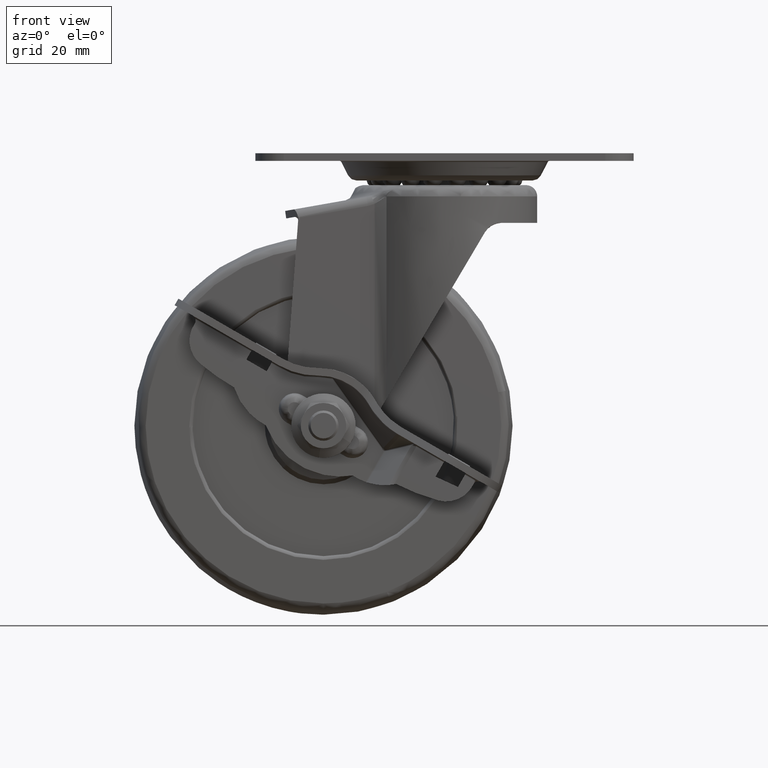
[diagram: clean part render]
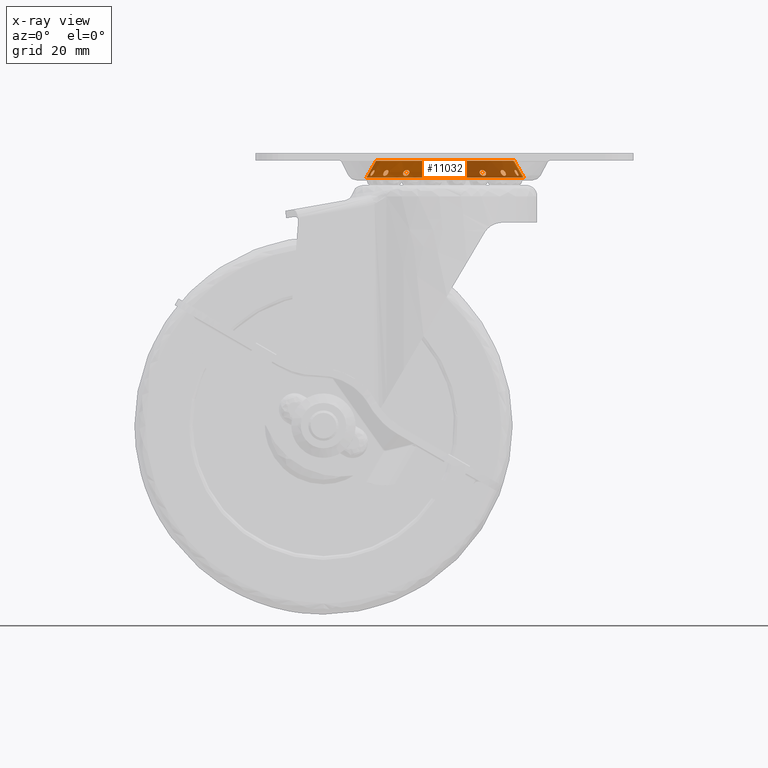
[diagram: x-ray — body ghosted, one internal face saturated and labeled with its STEP entity id]
A machine part, front view, then the same camera in x-ray: the body is ghosted and one INTERNAL B-rep face — a face not visible from any outside direction — is saturated and labeled: STEP entity #11032.
In plain terms, the highlighted face is a freeform B-spline surface patch.
Its self-contained STEP definition (entity closure, byte-faithful):
#9961=CARTESIAN_POINT('',(-18.049913398474029,3.345353710370038,0.111250025286827));
#9962=CARTESIAN_POINT('',(-14.704559688103981,21.395267108844067,0.111250025286827));
#9963=CARTESIAN_POINT('',(3.345353710370052,18.049913398474018,0.111250025286827));
#9964=CARTESIAN_POINT('',(21.395267108844081,14.704559688103968,0.111250025286827));
#9965=CARTESIAN_POINT('',(18.049913398474029,-3.345353710370066,0.111250025286827));
#9966=CARTESIAN_POINT('',(-20.703989282449321,3.837257599881830,-4.564032287392054));
#9967=CARTESIAN_POINT('',(-16.866731682567476,24.541246882331141,-4.564032287392053));
#9968=CARTESIAN_POINT('',(3.837257599881844,20.703989282449299,-4.564032287392054));
#9969=CARTESIAN_POINT('',(24.541246882331158,16.866731682567462,-4.564032287392053));
#9970=CARTESIAN_POINT('',(20.703989282449321,-3.837257599881859,-4.564032287392054));
#9978=(BOUNDED_SURFACE()B_SPLINE_SURFACE(2,1,((#9961,#9966),(#9962,#9967),(#9963,#9968),(#9964,#9969),(#9965,#9970)),.UNSPECIFIED.,.F.,.F.,.U.)B_SPLINE_SURFACE_WITH_KNOTS((3,2,3),(2,2),(0.0,34.887690221713548,69.775380443427096),(0.0,5.398551003525299),.UNSPECIFIED.)GEOMETRIC_REPRESENTATION_ITEM()RATIONAL_B_SPLINE_SURFACE(((1.0,1.0),(0.707106781186548,0.707106781186548),(1.0,1.0),(0.707106781186548,0.707106781186548),(1.0,1.0)))REPRESENTATION_ITEM('')SURFACE());
#9979=CARTESIAN_POINT('',(-18.113067831447669,3.357058692660500,0.000000090860744));
#9980=VERTEX_POINT('',#9979);
#9981=CARTESIAN_POINT('',(0.000002342105559,18.421538453566878,0.0));
#9982=VERTEX_POINT('',#9981);
#9983=CARTESIAN_POINT('',(-18.113067831447669,3.357058692660500,0.000000090860744));
#9984=CARTESIAN_POINT('',(-17.870639915159948,4.666084901249312,0.000000089644652));
#9985=CARTESIAN_POINT('',(-17.100301998045811,7.231149547490064,0.000000085780400));
#9986=CARTESIAN_POINT('',(-15.274961768716780,10.506387800262370,0.000000076623932));
#9987=CARTESIAN_POINT('',(-13.199905831871639,12.951741762972370,0.000000066214812));
#9988=CARTESIAN_POINT('',(-10.833570548409529,15.008332583922391,0.000000054344545));
#9989=CARTESIAN_POINT('',(-8.262378169163231,16.575645816628249,0.000000041446651));
#9990=CARTESIAN_POINT('',(-4.525936628231878,18.018880241910811,0.000000022703507));
#9991=CARTESIAN_POINT('',(-1.797324897275750,18.422247302644742,9.015948E-009));
#9992=CARTESIAN_POINT('',(0.000002342105559,18.421538453566878,0.0));
#9993=B_SPLINE_CURVE_WITH_KNOTS('',3,(#9983,#9984,#9985,#9986,#9987,#9988,#9989,#9990,#9991,#9992),.UNSPECIFIED.,.F.,.U.,(4,1,1,1,1,1,1,4),(0.000000176757357,3.993842668088728,7.987738922867063,11.182820307590200,13.579093387218951,17.373255241547088,20.168995523311750,25.560688998116401),.UNSPECIFIED.);
#9994=EDGE_CURVE('',#9980,#9982,#9993,.T.);
#9995=ORIENTED_EDGE('',*,*,#9994,.F.);
#9996=CARTESIAN_POINT('',(-20.639255717259399,3.825259942734584,-4.450000999064422));
#9997=VERTEX_POINT('',#9996);
#9998=CARTESIAN_POINT('',(-18.113067831447669,3.357058692660500,0.000000090860744));
#9999=CARTESIAN_POINT('',(-20.639255717259399,3.825259942734584,-4.450000999064422));
#10000=QUASI_UNIFORM_CURVE('',1,(#9998,#9999),.UNSPECIFIED.,.F.,.U.);
#10001=EDGE_CURVE('',#9980,#9997,#10000,.T.);
#10002=ORIENTED_EDGE('',*,*,#10001,.T.);
#10003=CARTESIAN_POINT('',(18.000125716439140,10.798470478964200,-4.450001011473058));
#10004=VERTEX_POINT('',#10003);
#10005=CARTESIAN_POINT('',(-20.639255717259399,3.825259942734584,-4.450000999064422));
#10006=CARTESIAN_POINT('',(-20.290715672774141,5.709913922432370,-4.450000998668592));
#10007=CARTESIAN_POINT('',(-19.323661739418210,8.622042674037129,-4.450000998216122));
#10008=CARTESIAN_POINT('',(-17.354822163789649,11.925264996278640,-4.450000998026741));
#10009=CARTESIAN_POINT('',(-15.494778121391271,14.251887268584900,-4.450000998069166));
#10010=CARTESIAN_POINT('',(-13.341565951647590,16.315560214162861,-4.450000998293753));
#10011=CARTESIAN_POINT('',(-10.349150057158189,18.399630117529941,-4.450000998824324));
#10012=CARTESIAN_POINT('',(-7.139587826709962,19.848797500288420,-4.450000999612655));
#10013=CARTESIAN_POINT('',(-3.613776209063950,20.764424419156331,-4.450001000667061));
#10014=CARTESIAN_POINT('',(-0.642352250080561,21.057337441640090,-4.450001001689116));
#10015=CARTESIAN_POINT('',(2.729607860421280,20.894934703673279,-4.450001002986932));
#10016=CARTESIAN_POINT('',(5.592648623250713,20.316780879945810,-4.450001004211357));
#10017=CARTESIAN_POINT('',(8.639112779506371,19.203332238396449,-4.450001005653416));
#10018=CARTESIAN_POINT('',(11.216765744161011,17.837269595533488,-4.450001006991603));
#10019=CARTESIAN_POINT('',(13.717274519064331,15.981428438818121,-4.450001008437592));
#10020=CARTESIAN_POINT('',(16.024857085969501,13.697950375109921,-4.450001009931358));
#10021=CARTESIAN_POINT('',(17.354286421207490,11.875281889842780,-4.450001010932679));
#10022=CARTESIAN_POINT('',(18.000125716439140,10.798470478964200,-4.450001011473058));
#10023=B_SPLINE_CURVE_WITH_KNOTS('',3,(#10005,#10006,#10007,#10008,#10009,#10010,#10011,#10012,#10013,#10014,#10015,#10016,#10017,#10018,#10019,#10020,#10021,#10022),.UNSPECIFIED.,.F.,.U.,(4,1,1,1,1,1,1,1,1,1,1,1,1,1,1,4),(0.000000440759443,5.749582039191090,9.120068498906143,11.499260585913859,14.671506461419931,18.042011534925759,22.403863329358469,25.179545667869821,28.946317935768359,31.325501480214310,35.290815608300782,37.670005500539332,41.040522814905501,44.014508307147132,46.988475227059674,50.755378924290092),.UNSPECIFIED.);
#10024=EDGE_CURVE('',#9997,#10004,#10023,.T.);
#10025=ORIENTED_EDGE('',*,*,#10024,.T.);
#10026=CARTESIAN_POINT('',(20.990747728811201,-1.421085E-014,-4.450001000000046));
#10027=VERTEX_POINT('',#10026);
#10028=CARTESIAN_POINT('',(18.000125716439140,10.798470478964200,-4.450001011473058));
#10029=CARTESIAN_POINT('',(18.699261182701029,9.633399274614417,-4.450001008790943));
#10030=CARTESIAN_POINT('',(19.870023197813389,7.166858319261762,-4.450001004299527));
#10031=CARTESIAN_POINT('',(20.806475355319002,3.485458156238838,-4.450001000706913));
#10032=CARTESIAN_POINT('',(20.990771372300170,1.063348904717558,-4.450001000000030));
#10033=CARTESIAN_POINT('',(20.990747728811201,-1.421085E-014,-4.450001000000046));
#10034=B_SPLINE_CURVE_WITH_KNOTS('',3,(#10028,#10029,#10030,#10031,#10032,#10033),.UNSPECIFIED.,.F.,.U.,(4,1,1,4),(0.000000025867214,4.076212989595751,8.152394580952908,11.342466853424551),.UNSPECIFIED.);
#10035=EDGE_CURVE('',#10004,#10027,#10034,.T.);
#10036=ORIENTED_EDGE('',*,*,#10035,.T.);
#10037=CARTESIAN_POINT('',(20.639255717888361,-3.825259942851199,-4.450001000223383));
#10038=VERTEX_POINT('',#10037);
#10039=CARTESIAN_POINT('',(20.990747728811201,-1.421085E-014,-4.450001000000046));
#10040=CARTESIAN_POINT('',(20.990844295843480,-1.282256181450641,-4.450000999995709));
#10041=CARTESIAN_POINT('',(20.872994285056361,-2.564487951819674,-4.450001000070587));
#10042=CARTESIAN_POINT('',(20.639255717888361,-3.825259942851199,-4.450001000223383));
#10043=B_SPLINE_CURVE_WITH_KNOTS('',3,(#10039,#10040,#10041,#10042),.UNSPECIFIED.,.F.,.U.,(4,4),(2.499787E-009,3.846776459197000),.UNSPECIFIED.);
#10044=EDGE_CURVE('',#10027,#10038,#10043,.T.);
#10045=ORIENTED_EDGE('',*,*,#10044,.T.);
#10046=CARTESIAN_POINT('',(18.113067831447658,-3.357058692660527,0.000000090860747));
#10047=VERTEX_POINT('',#10046);
#10048=CARTESIAN_POINT('',(18.113067831447658,-3.357058692660527,0.000000090860747));
#10049=CARTESIAN_POINT('',(20.639255717888361,-3.825259942851199,-4.450001000223383));
#10050=QUASI_UNIFORM_CURVE('',1,(#10048,#10049),.UNSPECIFIED.,.F.,.U.);
#10051=EDGE_CURVE('',#10047,#10038,#10050,.T.);
#10052=ORIENTED_EDGE('',*,*,#10051,.F.);
#10053=CARTESIAN_POINT('',(18.421538453567049,-1.421085E-014,0.0));
#10054=VERTEX_POINT('',#10053);
#10055=CARTESIAN_POINT('',(18.421538453567049,-1.421085E-014,0.0));
#10056=CARTESIAN_POINT('',(18.421596858046311,-1.125311884132868,0.000000030457221));
#10057=CARTESIAN_POINT('',(18.318223181232611,-2.250603042681532,0.000000060913881));
#10058=CARTESIAN_POINT('',(18.113067831447658,-3.357058692660527,0.000000090860747));
#10059=B_SPLINE_CURVE_WITH_KNOTS('',3,(#10055,#10056,#10057,#10058),.UNSPECIFIED.,.F.,.U.,(4,4),(3.657238E-009,3.375941670888360),.UNSPECIFIED.);
#10060=EDGE_CURVE('',#10054,#10047,#10059,.T.);
#10061=ORIENTED_EDGE('',*,*,#10060,.F.);
#10062=CARTESIAN_POINT('',(0.000002342105559,18.421538453566878,0.0));
#10063=CARTESIAN_POINT('',(1.054960689599599,18.421571618414720,0.0));
#10064=CARTESIAN_POINT('',(3.466353287740346,18.214024027573739,0.0));
#10065=CARTESIAN_POINT('',(6.961561205783689,17.200525078030321,0.0));
#10066=CARTESIAN_POINT('',(10.100088933676600,15.522687187629719,0.0));
#10067=CARTESIAN_POINT('',(12.887720210241159,13.319715418659120,0.0));
#10068=CARTESIAN_POINT('',(15.017059161281530,10.851181173012190,0.0));
#10069=CARTESIAN_POINT('',(16.652905162655632,8.043954967886895,0.0));
#10070=CARTESIAN_POINT('',(18.007578955017241,4.596286430337115,0.0));
#10071=CARTESIAN_POINT('',(18.422292887100738,1.808622896998695,0.0));
#10072=CARTESIAN_POINT('',(18.421538453567049,-1.421085E-014,0.0));
#10073=B_SPLINE_CURVE_WITH_KNOTS('',3,(#10062,#10063,#10064,#10065,#10066,#10067,#10068,#10069,#10070,#10071,#10072),.UNSPECIFIED.,.F.,.U.,(4,1,1,1,1,1,1,1,4),(0.000000188369054,3.164905889063906,7.234168192090881,10.851294832233600,13.790218223581880,17.859300169166641,20.572159404362619,23.511066841433301,28.936665180882450),.UNSPECIFIED.);
#10074=EDGE_CURVE('',#9982,#10054,#10073,.T.);
#10075=ORIENTED_EDGE('',*,*,#10074,.F.);
#10076=EDGE_LOOP('',(#9995,#10002,#10025,#10036,#10045,#10052,#10061,#10075));
#10077=FACE_OUTER_BOUND('',#10076,.T.);
#10078=CARTESIAN_POINT('',(-18.629680619776551,6.780649219484601,-2.431372505108084));
#10079=VERTEX_POINT('',#10078);
#10080=CARTESIAN_POINT('',(-19.471289188575049,7.087652105800255,-3.983038089415063));
#10081=VERTEX_POINT('',#10080);
#10082=CARTESIAN_POINT('',(-18.629680619776551,6.780649219484601,-2.431372505108084));
#10083=CARTESIAN_POINT('',(-18.608835302797821,6.837921257185048,-2.431372505108083));
#10084=CARTESIAN_POINT('',(-18.590663081991281,6.895206457493340,-2.436217735904338));
#10085=CARTESIAN_POINT('',(-18.567298501020581,6.981159418470214,-2.450503877296174));
#10086=CARTESIAN_POINT('',(-18.560164085806289,7.009814742631418,-2.456443585679647));
#10087=CARTESIAN_POINT('',(-18.547241954831001,7.067136799090369,-2.470732517682311));
#10088=CARTESIAN_POINT('',(-18.541430825873931,7.095950392927727,-2.479135588017428));
#10089=CARTESIAN_POINT('',(-18.526371602023890,7.181017423196240,-2.507647854148118));
#10090=CARTESIAN_POINT('',(-18.519418157073009,7.236008029699909,-2.530993489496922));
#10091=CARTESIAN_POINT('',(-18.513709139406981,7.315929875073476,-2.572501488057337));
#10092=CARTESIAN_POINT('',(-18.512598366529900,7.342140355316911,-2.587426192652391));
#10093=CARTESIAN_POINT('',(-18.512048345696339,7.393667346164299,-2.619543676710987));
#10094=CARTESIAN_POINT('',(-18.512621668777879,7.418933386511482,-2.636725218233177));
#10095=CARTESIAN_POINT('',(-18.516876669725821,7.491658569490292,-2.690549254853955));
#10096=CARTESIAN_POINT('',(-18.523052998715489,7.536661596444761,-2.729799227451450));
#10097=CARTESIAN_POINT('',(-18.542409842758889,7.619542424527293,-2.815164983899452));
#10098=CARTESIAN_POINT('',(-18.555788081581280,7.657575101454969,-2.861702577696031));
#10099=CARTESIAN_POINT('',(-18.588786847022970,7.722528724610988,-2.957549716189512));
#10100=CARTESIAN_POINT('',(-18.608464268843370,7.749980410746646,-3.007297645013866));
#10101=CARTESIAN_POINT('',(-18.643032954059951,7.783272715070343,-3.084757548539479));
#10102=CARTESIAN_POINT('',(-18.655394195137010,7.793002511125316,-3.111009686051883));
#10103=CARTESIAN_POINT('',(-18.681211374038739,7.809309852065125,-3.163159285362656));
#10104=CARTESIAN_POINT('',(-18.708264098141601,7.822613122106827,-3.215278224508566));
#10105=CARTESIAN_POINT('',(-18.737759429457402,7.829982718156990,-3.267335450381207));
#10106=CARTESIAN_POINT('',(-18.768496237706870,7.834329964842927,-3.319362682172931));
#10107=CARTESIAN_POINT('',(-18.784564219164888,7.834974199274240,-3.345475232302738));
#10108=CARTESIAN_POINT('',(-18.833544893459120,7.832289849731217,-3.421997455057699));
#10109=CARTESIAN_POINT('',(-18.867502019890431,7.824485704499702,-3.471110710109800));
#10110=CARTESIAN_POINT('',(-18.920286214700880,7.803972862702939,-3.542037834032541));
#10111=CARTESIAN_POINT('',(-18.938294317497299,7.795594424264545,-3.565344491644027));
#10112=CARTESIAN_POINT('',(-18.974279029300732,7.776157550924512,-3.610207669795252));
#10113=CARTESIAN_POINT('',(-19.010265914100820,7.754064886845380,-3.653389944477672));
#10114=CARTESIAN_POINT('',(-19.046230520570560,7.726851510620536,-3.693354516607563));
#10115=CARTESIAN_POINT('',(-19.082170156132079,7.697093839522530,-3.731732567132461));
#10116=CARTESIAN_POINT('',(-19.100198438625490,7.680872916196416,-3.750197343463545));
#10117=CARTESIAN_POINT('',(-19.153726852347930,7.628795997710657,-3.802693839933574));
#10118=CARTESIAN_POINT('',(-19.188210923246999,7.590057204429061,-3.833429208805240));
#10119=CARTESIAN_POINT('',(-19.238161596211992,7.526238359817941,-3.873559858866932));
#10120=CARTESIAN_POINT('',(-19.254513894105720,7.504006422687103,-3.885933536878667));
#10121=CARTESIAN_POINT('',(-19.286603227260500,7.457595228778277,-3.908655908952607));
#10122=CARTESIAN_POINT('',(-19.302245472764572,7.433540503981984,-3.918930583091187));
#10123=CARTESIAN_POINT('',(-19.347372655522442,7.359852484009434,-3.946204028661834));
#10124=CARTESIAN_POINT('',(-19.375331099383288,7.308339995702374,-3.959869555278646));
#10125=CARTESIAN_POINT('',(-19.414081861084671,7.227524293145304,-3.973711798163621));
#10126=CARTESIAN_POINT('',(-19.426520591563570,7.199852202865500,-3.977217526291644));
#10127=CARTESIAN_POINT('',(-19.449976991994362,7.144033336668761,-3.981867311438688));
#10128=CARTESIAN_POINT('',(-19.460984173723311,7.115934820784630,-3.983021883277189));
#10129=CARTESIAN_POINT('',(-19.471289188575049,7.087652105800269,-3.983038089415063));
#10130=B_SPLINE_CURVE_WITH_KNOTS('',3,(#10082,#10083,#10084,#10085,#10086,#10087,#10088,#10089,#10090,#10091,#10092,#10093,#10094,#10095,#10096,#10097,#10098,#10099,#10100,#10101,#10102,#10103,#10104,#10105,#10106,#10107,#10108,#10109,#10110,#10111,#10112,#10113,#10114,#10115,#10116,#10117,#10118,#10119,#10120,#10121,#10122,#10123,#10124,#10125,#10126,#10127,#10128,#10129),.UNSPECIFIED.,.F.,.U.,(4,2,2,2,2,2,2,2,2,2,2,1,2,2,2,2,1,2,2,2,2,2,2,2,4),(0.0,0.031249999999999,0.046874999999999,0.062499999999999,0.093749999999998,0.109374999999998,0.124999999999998,0.156249999999998,0.187499999999998,0.218749999999997,0.234374999999998,0.249999999999998,0.265624999999998,0.281249999999998,0.312499999999999,0.328124999999998,0.343749999999998,0.359374999999997,0.374999999999997,0.406249999999997,0.421874999999997,0.437499999999998,0.468749999999998,0.484374999999998,0.499999999999997),.UNSPECIFIED.);
#10131=EDGE_CURVE('',#10079,#10081,#10130,.T.);
#10132=ORIENTED_EDGE('',*,*,#10131,.T.);
#10133=CARTESIAN_POINT('',(-19.471289188575049,7.087652105800269,-3.983038089415063));
#10134=CARTESIAN_POINT('',(-19.491899218278540,7.031086675831547,-3.983070501690810));
#10135=CARTESIAN_POINT('',(-19.509718342879228,6.973788988777203,-3.978580964882347));
#10136=CARTESIAN_POINT('',(-19.532159982047119,6.886719083385866,-3.964868313120723));
#10137=CARTESIAN_POINT('',(-19.538924919523961,6.857449047967257,-3.959099830554553));
#10138=CARTESIAN_POINT('',(-19.550728911479300,6.799720079536948,-3.945421357373022));
#10139=CARTESIAN_POINT('',(-19.555809326142491,6.771115494089750,-3.937494121931525));
#10140=CARTESIAN_POINT('',(-19.568622803713271,6.686077652925885,-3.910474184101944));
#10141=CARTESIAN_POINT('',(-19.573951137973559,6.630412084772341,-3.888176513309722));
#10142=CARTESIAN_POINT('',(-19.576875549884701,6.548576866697243,-3.847842907026007));
#10143=CARTESIAN_POINT('',(-19.576984611850769,6.521802785779047,-3.833341789318228));
#10144=CARTESIAN_POINT('',(-19.575500465621960,6.469922665066444,-3.802601969462084));
#10145=CARTESIAN_POINT('',(-19.572322475101281,6.419499545379996,-3.770021949588552));
#10146=CARTESIAN_POINT('',(-19.565775237200800,6.372007548103390,-3.733734561694767));
#10147=CARTESIAN_POINT('',(-19.557503592745729,6.326033224576551,-3.695524771921413));
#10148=CARTESIAN_POINT('',(-19.552474756298999,6.303697165825864,-3.675350873334802));
#10149=CARTESIAN_POINT('',(-19.534883452701649,6.239899285282240,-3.612530926440501));
#10150=CARTESIAN_POINT('',(-19.520020660833609,6.202084662733807,-3.568149811820406));
#10151=CARTESIAN_POINT('',(-19.493117931744361,6.152441535373968,-3.497790159902317));
#10152=CARTESIAN_POINT('',(-19.483376520888388,6.137081999283222,-3.473701238701810));
#10153=CARTESIAN_POINT('',(-19.462287624361579,6.108849470573698,-3.424188206440484));
#10154=CARTESIAN_POINT('',(-19.450955091414240,6.096032020808796,-3.398817687445344));
#10155=CARTESIAN_POINT('',(-19.415382799614271,6.062312313539487,-3.322571138871810));
#10156=CARTESIAN_POINT('',(-19.389333718583192,6.045732782327835,-3.270955871950509));
#10157=CARTESIAN_POINT('',(-19.346727834156201,6.029861797507577,-3.192323135935423));
#10158=CARTESIAN_POINT('',(-19.331845284814239,6.026082458725464,-3.165765402219630));
#10159=CARTESIAN_POINT('',(-19.301532708546429,6.021764251842881,-3.113416477687610));
#10160=CARTESIAN_POINT('',(-19.270574672960070,6.020611733316532,-3.061633574787454));
#10161=CARTESIAN_POINT('',(-19.238350781404922,6.025624947149924,-3.010958510590732));
#10162=CARTESIAN_POINT('',(-19.205483842877310,6.033732804362980,-2.960844266834505));
#10163=CARTESIAN_POINT('',(-19.188628897516072,6.039380461527469,-2.935926637611329));
#10164=CARTESIAN_POINT('',(-19.137896355063059,6.060740784909960,-2.863252434050820));
#10165=CARTESIAN_POINT('',(-19.103939925028939,6.080705027352670,-2.817632105936932));
#10166=CARTESIAN_POINT('',(-19.035666881336489,6.131504691955552,-2.731843646962106));
#10167=CARTESIAN_POINT('',(-19.001177034700060,6.162637160770787,-2.691553631640461));
#10168=CARTESIAN_POINT('',(-18.934547641307340,6.233034916505421,-2.619727310061093));
#10169=CARTESIAN_POINT('',(-18.902052000379111,6.272512199269840,-2.587712285927533));
#10170=CARTESIAN_POINT('',(-18.838568422871049,6.359927794751466,-2.531499796538737));
#10171=CARTESIAN_POINT('',(-18.808308576112999,6.406899200538158,-2.507971281166893));
#10172=CARTESIAN_POINT('',(-18.765431730910279,6.481167287912339,-2.479563096007701));
#10173=CARTESIAN_POINT('',(-18.751532404411620,6.506603900609479,-2.471223555257229));
#10174=CARTESIAN_POINT('',(-18.724514531443671,6.558842242276235,-2.456821651206754));
#10175=CARTESIAN_POINT('',(-18.711348047511851,6.585753542359006,-2.450744718582955));
#10176=CARTESIAN_POINT('',(-18.673561529025999,6.667454179052963,-2.436224085542900));
#10177=CARTESIAN_POINT('',(-18.650525936755280,6.723377181784151,-2.431372505108086));
#10178=CARTESIAN_POINT('',(-18.629680619776551,6.780649219484601,-2.431372505108084));
#10179=B_SPLINE_CURVE_WITH_KNOTS('',3,(#10133,#10134,#10135,#10136,#10137,#10138,#10139,#10140,#10141,#10142,#10143,#10144,#10145,#10146,#10147,#10148,#10149,#10150,#10151,#10152,#10153,#10154,#10155,#10156,#10157,#10158,#10159,#10160,#10161,#10162,#10163,#10164,#10165,#10166,#10167,#10168,#10169,#10170,#10171,#10172,#10173,#10174,#10175,#10176,#10177,#10178),.UNSPECIFIED.,.F.,.U.,(4,2,2,2,2,2,1,2,2,2,2,2,2,2,1,2,2,2,2,2,2,2,2,4),(0.499999999999997,0.531249999999998,0.546874999999999,0.562499999999999,0.593750000000000,0.609375000000000,0.625000000000001,0.640625000000001,0.656250000000002,0.687500000000002,0.703125000000003,0.718750000000003,0.750000000000003,0.765625000000003,0.781250000000003,0.796875000000002,0.812500000000002,0.843750000000001,0.875000000000001,0.906250000000000,0.937499999999999,0.953124999999999,0.968749999999999,1.0),.UNSPECIFIED.);
#10180=EDGE_CURVE('',#10081,#10079,#10179,.T.);
#10181=ORIENTED_EDGE('',*,*,#10180,.T.);
#10182=EDGE_LOOP('',(#10132,#10181));
#10183=FACE_BOUND('',#10182,.T.);
#10184=CARTESIAN_POINT('',(-15.187054788287099,12.743452071520840,-2.431372504921420));
#10185=VERTEX_POINT('',#10184);
#10186=CARTESIAN_POINT('',(-15.872906978628350,13.319787501525180,-3.983038089415087));
#10187=VERTEX_POINT('',#10186);
#10188=CARTESIAN_POINT('',(-15.187054788287099,12.743452071520840,-2.431372504921420));
#10189=CARTESIAN_POINT('',(-15.147878407198951,12.790140664427490,-2.431372504921419));
#10190=CARTESIAN_POINT('',(-15.111209412814249,12.837755878720991,-2.436217735903875));
#10191=CARTESIAN_POINT('',(-15.059856244454171,12.910534084555421,-2.450503877296000));
#10192=CARTESIAN_POINT('',(-15.043351389046640,12.935021167502310,-2.456443585679598));
#10193=CARTESIAN_POINT('',(-15.011603259958131,12.984466651877479,-2.470732517682467));
#10194=CARTESIAN_POINT('',(-14.996287755464749,13.009555050226041,-2.479135588017633));
#10195=CARTESIAN_POINT('',(-14.953042076053320,13.084341352942120,-2.507647854148443));
#10196=CARTESIAN_POINT('',(-14.927700080025961,13.133637401847571,-2.530993489497339));
#10197=CARTESIAN_POINT('',(-14.895000477243711,13.206786771144490,-2.572501488057949));
#10198=CARTESIAN_POINT('',(-14.884992179958269,13.231036659317949,-2.587426192653079));
#10199=CARTESIAN_POINT('',(-14.866852060644931,13.279268074184341,-2.619543676711839));
#10200=CARTESIAN_POINT('',(-14.858749313373201,13.303206473897610,-2.636725218234097));
#10201=CARTESIAN_POINT('',(-14.837874228859709,13.373001087722240,-2.690549254855072));
#10202=CARTESIAN_POINT('',(-14.828286137905851,13.417402528990729,-2.729799227452720));
#10203=CARTESIAN_POINT('',(-14.818128708715591,13.501905462118691,-2.815164983901108));
#10204=CARTESIAN_POINT('',(-14.817692199402360,13.542220115135841,-2.861702577697857));
#10205=CARTESIAN_POINT('',(-14.826485448281890,13.614542797994741,-2.957549716191636));
#10206=CARTESIAN_POINT('',(-14.835587146736129,13.647069019515820,-3.007297645016165));
#10207=CARTESIAN_POINT('',(-14.856684446448300,13.690176738890051,-3.084757548542092));
#10208=CARTESIAN_POINT('',(-14.864972427230990,13.703547549889461,-3.111009686054543));
#10209=CARTESIAN_POINT('',(-14.883655200649150,13.727701433063350,-3.163159285365415));
#10210=CARTESIAN_POINT('',(-14.904526494640089,13.749454954197409,-3.215278224641506));
#10211=CARTESIAN_POINT('',(-14.929722454422601,13.766468146799200,-3.267335450384203));
#10212=CARTESIAN_POINT('',(-14.957118760386781,13.781065829993411,-3.319362682176065));
#10213=CARTESIAN_POINT('',(-14.971997382841399,13.787166785655710,-3.345475232305920));
#10214=CARTESIAN_POINT('',(-15.018942262652541,13.801396699440520,-3.421997455060907));
#10215=CARTESIAN_POINT('',(-15.053520698653969,13.805677223003681,-3.471110710113041));
#10216=CARTESIAN_POINT('',(-15.110137422103181,13.804454714809950,-3.542037834035840));
#10217=CARTESIAN_POINT('',(-15.129925098131000,13.802740691935000,-3.565344491647348));
#10218=CARTESIAN_POINT('',(-15.170387468479531,13.796783501774510,-3.610207669798495));
#10219=CARTESIAN_POINT('',(-15.211760214706221,13.788331427862770,-3.653389944480845));
#10220=CARTESIAN_POINT('',(-15.254863412852290,13.775059838896770,-3.693354516610667));
#10221=CARTESIAN_POINT('',(-15.298813346117351,13.759388854259720,-3.731732567135492));
#10222=CARTESIAN_POINT('',(-15.321302272662869,13.750312208069960,-3.750197343466557));
#10223=CARTESIAN_POINT('',(-15.389413883164840,13.719683707788571,-3.802693839936325));
#10224=CARTESIAN_POINT('',(-15.435067757753901,13.695075396474779,-3.833429208807831));
#10225=CARTESIAN_POINT('',(-15.503833366923351,13.652189435452851,-3.873559858869262));
#10226=CARTESIAN_POINT('',(-15.526803270910939,13.636891063454391,-3.885933536880916));
#10227=CARTESIAN_POINT('',(-15.572830943675189,13.604254005340870,-3.908655908954661));
#10228=CARTESIAN_POINT('',(-15.595757046770339,13.586999921003891,-3.918930583093095));
#10229=CARTESIAN_POINT('',(-15.663365514557190,13.533190237909700,-3.946204028663356));
#10230=CARTESIAN_POINT('',(-15.707256166575760,13.494346683745400,-3.959869555279910));
#10231=CARTESIAN_POINT('',(-15.771310569567961,13.431658305479500,-3.973711798164455));
#10232=CARTESIAN_POINT('',(-15.792463565094559,13.409909342822839,-3.977217526292320));
#10233=CARTESIAN_POINT('',(-15.833596548106360,13.365479327594160,-3.981867311439035));
#10234=CARTESIAN_POINT('',(-15.853550173982580,13.342840037435250,-3.983021883277381));
#10235=CARTESIAN_POINT('',(-15.872906978628350,13.319787501525180,-3.983038089415087));
#10236=B_SPLINE_CURVE_WITH_KNOTS('',3,(#10188,#10189,#10190,#10191,#10192,#10193,#10194,#10195,#10196,#10197,#10198,#10199,#10200,#10201,#10202,#10203,#10204,#10205,#10206,#10207,#10208,#10209,#10210,#10211,#10212,#10213,#10214,#10215,#10216,#10217,#10218,#10219,#10220,#10221,#10222,#10223,#10224,#10225,#10226,#10227,#10228,#10229,#10230,#10231,#10232,#10233,#10234,#10235),.UNSPECIFIED.,.F.,.U.,(4,2,2,2,2,2,2,2,2,2,2,1,2,2,2,2,1,2,2,2,2,2,2,2,4),(0.0,0.031250000000001,0.046875000000002,0.062500000000002,0.093750000000003,0.109375000000003,0.125000000000004,0.156250000000005,0.187500000000006,0.218750000000007,0.234375000000007,0.250000000000008,0.265625000000009,0.281250000000009,0.312500000000011,0.328125000000011,0.343750000000012,0.359375000000012,0.375000000000012,0.406250000000013,0.421875000000013,0.437500000000013,0.468750000000013,0.484375000000014,0.500000000000015),.UNSPECIFIED.);
#10237=EDGE_CURVE('',#10185,#10187,#10236,.T.);
#10238=ORIENTED_EDGE('',*,*,#10237,.T.);
#10239=CARTESIAN_POINT('',(-15.872906978628350,13.319787501525180,-3.983038089415087));
#10240=CARTESIAN_POINT('',(-15.911620587920041,13.273682429704850,-3.983070501690499));
#10241=CARTESIAN_POINT('',(-15.947962050954651,13.225934715541401,-3.978580964881679));
#10242=CARTESIAN_POINT('',(-15.998829955200200,13.151791260596900,-3.964868313119465));
#10243=CARTESIAN_POINT('',(-16.015197858736190,13.126600169189230,-3.959099830553106));
#10244=CARTESIAN_POINT('',(-16.046034452928790,13.076389886569951,-3.945421357371198));
#10245=CARTESIAN_POINT('',(-16.060591825512638,13.051247972855780,-3.937494121929505));
#10246=CARTESIAN_POINT('',(-16.101717210455138,12.975721008461599,-3.910474184099325));
#10247=CARTESIAN_POINT('',(-16.125762952438571,12.925234882483110,-3.888176513306683));
#10248=CARTESIAN_POINT('',(-16.156500293746351,12.849335139718301,-3.847842907022239));
#10249=CARTESIAN_POINT('',(-16.165760053463931,12.824213034840501,-3.833341789314291));
#10250=CARTESIAN_POINT('',(-16.182109458526089,12.774954060335530,-3.802601969457755));
#10251=CARTESIAN_POINT('',(-16.196369002937299,12.726484806275129,-3.770022121408995));
#10252=CARTESIAN_POINT('',(-16.206459675480009,12.679617723443551,-3.733734561689598));
#10253=CARTESIAN_POINT('',(-16.214411016945380,12.633586921857731,-3.695524771915776));
#10254=CARTESIAN_POINT('',(-16.217324838460300,12.610877928909980,-3.675350873328866));
#10255=CARTESIAN_POINT('',(-16.222614580526589,12.544910951164081,-3.612530926434089));
#10256=CARTESIAN_POINT('',(-16.221581487307290,12.504293455192821,-3.568149811813658));
#10257=CARTESIAN_POINT('',(-16.213280140837171,12.448442899481480,-3.497790159895005));
#10258=CARTESIAN_POINT('',(-16.209379479674698,12.430677898021280,-3.473701238694309));
#10259=CARTESIAN_POINT('',(-16.199218492743089,12.396935171714400,-3.424188206432559));
#10260=CARTESIAN_POINT('',(-16.192953221163080,12.381014754210399,-3.398817687437347));
#10261=CARTESIAN_POINT('',(-16.171059020166631,12.337162153775200,-3.322571138863538));
#10262=CARTESIAN_POINT('',(-16.152251424584271,12.312673180212220,-3.270955871942031));
#10263=CARTESIAN_POINT('',(-16.117643185888291,12.283187262194501,-3.192323135926596));
#10264=CARTESIAN_POINT('',(-16.104950774084848,12.274545713770779,-3.165765402210729));
#10265=CARTESIAN_POINT('',(-16.077943183585440,12.260120414949110,-3.113416477678739));
#10266=CARTESIAN_POINT('',(-16.049246330542029,12.248449130026851,-3.061633574778608));
#10267=CARTESIAN_POINT('',(-16.017251157320381,12.242138790064899,-3.010958510581888));
#10268=CARTESIAN_POINT('',(-15.983593287231610,12.238516528633131,-2.960844266825658));
#10269=CARTESIAN_POINT('',(-15.965823206938779,12.238058859567460,-2.935926637602468));
#10270=CARTESIAN_POINT('',(-15.910844550296730,12.240779446387521,-2.863252434042338));
#10271=CARTESIAN_POINT('',(-15.872107770503460,12.247925914624039,-2.817632105928678));
#10272=CARTESIAN_POINT('',(-15.790577586577969,12.272311228402129,-2.731843646954314));
#10273=CARTESIAN_POINT('',(-15.747519800755180,12.289769957325429,-2.691553631633066));
#10274=CARTESIAN_POINT('',(-15.660831200950071,12.333133614232500,-2.619727310054559));
#10275=CARTESIAN_POINT('',(-15.616793261052701,12.359115961767779,-2.587712285921420));
#10276=CARTESIAN_POINT('',(-15.527240317231319,12.419547089506651,-2.531499796533522));
#10277=CARTESIAN_POINT('',(-15.482740195587461,12.453336295787521,-2.507971281162369));
#10278=CARTESIAN_POINT('',(-15.417047958659600,12.508460724712100,-2.479563096004048));
#10279=CARTESIAN_POINT('',(-15.395287030194490,12.527609472320460,-2.471223555253872));
#10280=CARTESIAN_POINT('',(-15.352031969233179,12.567456799722491,-2.456821651204000));
#10281=CARTESIAN_POINT('',(-15.330455314729360,12.588241947104841,-2.450744718580519));
#10282=CARTESIAN_POINT('',(-15.267004338671381,12.652091682051919,-2.436224085541485));
#10283=CARTESIAN_POINT('',(-15.226231169375261,12.696763478614191,-2.431372504921422));
#10284=CARTESIAN_POINT('',(-15.187054788287099,12.743452071520840,-2.431372504921420));
#10285=B_SPLINE_CURVE_WITH_KNOTS('',3,(#10239,#10240,#10241,#10242,#10243,#10244,#10245,#10246,#10247,#10248,#10249,#10250,#10251,#10252,#10253,#10254,#10255,#10256,#10257,#10258,#10259,#10260,#10261,#10262,#10263,#10264,#10265,#10266,#10267,#10268,#10269,#10270,#10271,#10272,#10273,#10274,#10275,#10276,#10277,#10278,#10279,#10280,#10281,#10282,#10283,#10284),.UNSPECIFIED.,.F.,.U.,(4,2,2,2,2,2,1,2,2,2,2,2,2,2,1,2,2,2,2,2,2,2,2,4),(0.500000000000015,0.531250000000017,0.546875000000018,0.562500000000018,0.593750000000019,0.609375000000018,0.625000000000017,0.640625000000017,0.656250000000016,0.687500000000015,0.703125000000014,0.718750000000013,0.750000000000012,0.765625000000011,0.781250000000010,0.796875000000009,0.812500000000009,0.843750000000007,0.875000000000006,0.906250000000004,0.937500000000003,0.953125000000002,0.968750000000001,1.0),.UNSPECIFIED.);
#10286=EDGE_CURVE('',#10187,#10185,#10285,.T.);
#10287=ORIENTED_EDGE('',*,*,#10286,.T.);
#10288=EDGE_LOOP('',(#10238,#10287));
#10289=FACE_BOUND('',#10288,.T.);
#10290=CARTESIAN_POINT('',(-9.912646012059307,17.169206530331749,-2.431372504921410));
#10291=VERTEX_POINT('',#10290);
#10292=CARTESIAN_POINT('',(-10.360017927899280,17.945359945444991,-3.983038089415119));
#10293=VERTEX_POINT('',#10292);
#10294=CARTESIAN_POINT('',(-9.912646012059307,17.169206530331749,-2.431372504921410));
#10295=CARTESIAN_POINT('',(-9.859863816604069,17.199680345086250,-2.431372504921411));
#10296=CARTESIAN_POINT('',(-9.809120870751986,17.231882475879949,-2.436217735903864));
#10297=CARTESIAN_POINT('',(-9.735973064999570,17.282707800853871,-2.450503877295992));
#10298=CARTESIAN_POINT('',(-9.712088498546866,17.300073138991589,-2.456443585679592));
#10299=CARTESIAN_POINT('',(-9.665343664265818,17.335678196128921,-2.470732517682461));
#10300=CARTESIAN_POINT('',(-9.642371060110781,17.354015367882489,-2.479135588017623));
#10301=CARTESIAN_POINT('',(-9.576154992313246,17.409500611210131,-2.507647854148436));
#10302=CARTESIAN_POINT('',(-9.535481063938320,17.447156271487049,-2.530993489497339));
#10303=CARTESIAN_POINT('',(-9.479734930730102,17.504710271200238,-2.572501488057953));
#10304=CARTESIAN_POINT('',(-9.462036257395619,17.524074672899701,-2.587426192653083));
#10305=CARTESIAN_POINT('',(-9.428494005711295,17.563193091332231,-2.619543676711846));
#10306=CARTESIAN_POINT('',(-9.412692498991033,17.582916526112999,-2.636725218234100));
#10307=CARTESIAN_POINT('',(-9.369205172291759,17.641362310297371,-2.690549254855077));
#10308=CARTESIAN_POINT('',(-9.345009126668481,17.679806696767361,-2.729799227452729));
#10309=CARTESIAN_POINT('',(-9.306562560112370,17.755739434075011,-2.815164983901120));
#10310=CARTESIAN_POINT('',(-9.292363952128799,17.793473521046899,-2.861702577697870));
#10311=CARTESIAN_POINT('',(-9.275891088856527,17.864442080686921,-2.957549716191653));
#10312=CARTESIAN_POINT('',(-9.273319264784112,17.898119695242151,-3.007297645016184));
#10313=CARTESIAN_POINT('',(-9.278400533283326,17.945843402508370,-3.084757548542112));
#10314=CARTESIAN_POINT('',(-9.281615600971641,17.961242511313600,-3.111009686054561));
#10315=CARTESIAN_POINT('',(-9.290910550703497,17.990329621937640,-3.163159285365434));
#10316=CARTESIAN_POINT('',(-9.303083009236930,18.017909648185590,-3.215278224641525));
#10317=CARTESIAN_POINT('',(-9.320940612146071,18.042514345505548,-3.267335450384226));
#10318=CARTESIAN_POINT('',(-9.341692016999110,18.065601769176180,-3.319362682176089));
#10319=CARTESIAN_POINT('',(-9.353586698997136,18.076423580776201,-3.345475232305945));
#10320=CARTESIAN_POINT('',(-9.392833538987150,18.105851420275620,-3.421997455060930));
#10321=CARTESIAN_POINT('',(-9.423862614853434,18.121700318318201,-3.471110710113063));
#10322=CARTESIAN_POINT('',(-9.477483054519380,18.139915596258440,-3.542037834035863));
#10323=CARTESIAN_POINT('',(-9.496663618014578,18.145072725402109,-3.565344491647372));
#10324=CARTESIAN_POINT('',(-9.536723287883103,18.153313743473579,-3.610207669798517));
#10325=CARTESIAN_POINT('',(-9.578491524795599,18.159521918975280,-3.653390150649949));
#10326=CARTESIAN_POINT('',(-9.623534639735107,18.161792652372860,-3.693354516610689));
#10327=CARTESIAN_POINT('',(-9.670193860119948,18.162098506223451,-3.731732567135517));
#10328=CARTESIAN_POINT('',(-9.694430934274905,18.161260914657792,-3.750197343466588));
#10329=CARTESIAN_POINT('',(-9.768910476109541,18.155775081743649,-3.802693839936356));
#10330=CARTESIAN_POINT('',(-9.820227623333716,18.148265377922399,-3.833429208807859));
#10331=CARTESIAN_POINT('',(-9.899514021369468,18.131484980318788,-3.873559858869287));
#10332=CARTESIAN_POINT('',(-9.926331022030340,18.124965382895809,-3.885933536880931));
#10333=CARTESIAN_POINT('',(-9.980745417772562,18.110038971458149,-3.908655908954677));
#10334=CARTESIAN_POINT('',(-10.008190152072350,18.101666624794770,-3.918930583093113));
#10335=CARTESIAN_POINT('',(-10.090125325878480,18.074225520506811,-3.946204028663374));
#10336=CARTESIAN_POINT('',(-10.144654325664360,18.052736006387569,-3.959869555279939));
#10337=CARTESIAN_POINT('',(-10.226286463604330,18.015736096014109,-3.973711798164484));
#10338=CARTESIAN_POINT('',(-10.253602360733220,18.002533506857670,-3.977217526292348));
#10339=CARTESIAN_POINT('',(-10.307450681516791,17.974851258150991,-3.981867311439065));
#10340=CARTESIAN_POINT('',(-10.333944049775550,17.960401826230889,-3.983021883277414));
#10341=CARTESIAN_POINT('',(-10.360017927899280,17.945359945444991,-3.983038089415119));
#10342=B_SPLINE_CURVE_WITH_KNOTS('',3,(#10294,#10295,#10296,#10297,#10298,#10299,#10300,#10301,#10302,#10303,#10304,#10305,#10306,#10307,#10308,#10309,#10310,#10311,#10312,#10313,#10314,#10315,#10316,#10317,#10318,#10319,#10320,#10321,#10322,#10323,#10324,#10325,#10326,#10327,#10328,#10329,#10330,#10331,#10332,#10333,#10334,#10335,#10336,#10337,#10338,#10339,#10340,#10341),.UNSPECIFIED.,.F.,.U.,(4,2,2,2,2,2,2,2,2,2,2,1,2,2,2,2,1,2,2,2,2,2,2,2,4),(0.0,0.031249999999998,0.046874999999998,0.062499999999997,0.093749999999997,0.109374999999997,0.124999999999998,0.156249999999997,0.187499999999996,0.218749999999995,0.234374999999995,0.249999999999994,0.265624999999994,0.281249999999993,0.312499999999992,0.328124999999992,0.343749999999992,0.359374999999991,0.374999999999991,0.406249999999990,0.421874999999990,0.437499999999990,0.468749999999990,0.484374999999990,0.499999999999990),.UNSPECIFIED.);
#10343=EDGE_CURVE('',#10291,#10293,#10342,.T.);
#10344=ORIENTED_EDGE('',*,*,#10343,.T.);
#10345=CARTESIAN_POINT('',(-10.360017927899280,17.945359945444991,-3.983038089415119));
#10346=CARTESIAN_POINT('',(-10.412165684146570,17.915276183873271,-3.983070501690529));
#10347=CARTESIAN_POINT('',(-10.462646168830400,17.882837521610249,-3.978580964881700));
#10348=CARTESIAN_POINT('',(-10.535804918171570,17.830563312020072,-3.964868313119484));
#10349=CARTESIAN_POINT('',(-10.559801577035859,17.812489582028050,-3.959099830553127));
#10350=CARTESIAN_POINT('',(-10.605951425106690,17.775854086328579,-3.945421357371220));
#10351=CARTESIAN_POINT('',(-10.628229921633761,17.757207330196518,-3.937494121929522));
#10352=CARTESIAN_POINT('',(-10.692706885578261,17.700300909137290,-3.910474184099339));
#10353=CARTESIAN_POINT('',(-10.732569763924531,17.661083597222792,-3.888176513306695));
#10354=CARTESIAN_POINT('',(-10.787412657632840,17.600273958906680,-3.847842907022252));
#10355=CARTESIAN_POINT('',(-10.804706251420651,17.579833926680170,-3.833341789314305));
#10356=CARTESIAN_POINT('',(-10.836917228232060,17.539137457693009,-3.802601969457767));
#10357=CARTESIAN_POINT('',(-10.866894278111660,17.498468308740740,-3.770022121409011));
#10358=CARTESIAN_POINT('',(-10.892405895026130,17.457878870115461,-3.733734561689616));
#10359=CARTESIAN_POINT('',(-10.915621173282270,17.417343584484019,-3.695524771915793));
#10360=CARTESIAN_POINT('',(-10.926126202880891,17.397000697037679,-3.675350873328871));
#10361=CARTESIAN_POINT('',(-10.953658969649871,17.336821213173991,-3.612530926434095));
#10362=CARTESIAN_POINT('',(-10.966580181368720,17.298299913244069,-3.568149811813664));
#10363=CARTESIAN_POINT('',(-10.977881482417381,17.242978330465821,-3.497790159895014));
#10364=CARTESIAN_POINT('',(-10.980292048252410,17.224950584995561,-3.473701238694319));
#10365=CARTESIAN_POINT('',(-10.982284535900551,17.189767531873120,-3.424188206432571));
#10366=CARTESIAN_POINT('',(-10.981842209906130,17.172664383940990,-3.398817687437352));
#10367=CARTESIAN_POINT('',(-10.976266863477820,17.123968161146959,-3.322571138863545));
#10368=CARTESIAN_POINT('',(-10.966969226942251,17.094523476862509,-3.270955871942042));
#10369=CARTESIAN_POINT('',(-10.944532898327759,17.054979062525110,-3.192323135926607));
#10370=CARTESIAN_POINT('',(-10.935561516246510,17.042517602735028,-3.165765402210726));
#10371=CARTESIAN_POINT('',(-10.915116425519511,17.019725115906169,-3.113416477678738));
#10372=CARTESIAN_POINT('',(-10.892142155057780,16.998942676589351,-3.061633547602769));
#10373=CARTESIAN_POINT('',(-10.864234654217810,16.982070020170841,-3.010958510581888));
#10374=CARTESIAN_POINT('',(-10.833845488438079,16.967154538281051,-2.960844266825660));
#10375=CARTESIAN_POINT('',(-10.817303607155580,16.960646744628630,-2.935926637602465));
#10376=CARTESIAN_POINT('',(-10.764710073714189,16.944399451963061,-2.863252434042334));
#10377=CARTESIAN_POINT('',(-10.725865171498921,16.937866176452740,-2.817632105928675));
#10378=CARTESIAN_POINT('',(-10.640911590779391,16.932895910673999,-2.731843646954311));
#10379=CARTESIAN_POINT('',(-10.594479270205710,16.934575119333122,-2.691553631633057));
#10380=CARTESIAN_POINT('',(-10.498187388512100,16.945674380408938,-2.619727310054548));
#10381=CARTESIAN_POINT('',(-10.447918775127970,16.955027938143061,-2.587712285921411));
#10382=CARTESIAN_POINT('',(-10.343097871678790,16.981185712264040,-2.531499796533515));
#10383=CARTESIAN_POINT('',(-10.289724846570930,16.997717242085749,-2.507971281162360));
#10384=CARTESIAN_POINT('',(-10.209140671205359,17.027049192881758,-2.479563096004038));
#10385=CARTESIAN_POINT('',(-10.182142829903739,17.037600453834091,-2.471223555253859));
#10386=CARTESIAN_POINT('',(-10.127867779677560,17.060250591202269,-2.456821651203987));
#10387=CARTESIAN_POINT('',(-10.100483417572310,17.072402590353530,-2.450744718580507));
#10388=CARTESIAN_POINT('',(-10.019021108091060,17.110700203196931,-2.436224085541474));
#10389=CARTESIAN_POINT('',(-9.965428207514551,17.138732715577252,-2.431372504921410));
#10390=CARTESIAN_POINT('',(-9.912646012059307,17.169206530331749,-2.431372504921410));
#10391=B_SPLINE_CURVE_WITH_KNOTS('',3,(#10345,#10346,#10347,#10348,#10349,#10350,#10351,#10352,#10353,#10354,#10355,#10356,#10357,#10358,#10359,#10360,#10361,#10362,#10363,#10364,#10365,#10366,#10367,#10368,#10369,#10370,#10371,#10372,#10373,#10374,#10375,#10376,#10377,#10378,#10379,#10380,#10381,#10382,#10383,#10384,#10385,#10386,#10387,#10388,#10389,#10390),.UNSPECIFIED.,.F.,.U.,(4,2,2,2,2,2,1,2,2,2,2,2,2,2,1,2,2,2,2,2,2,2,2,4),(0.499999999999990,0.531249999999990,0.546874999999991,0.562499999999991,0.593749999999990,0.609374999999990,0.624999999999990,0.640624999999991,0.656249999999991,0.687499999999992,0.703124999999992,0.718749999999992,0.749999999999993,0.765624999999993,0.781249999999993,0.796874999999994,0.812499999999994,0.843749999999995,0.874999999999996,0.906249999999997,0.937499999999997,0.953124999999998,0.968749999999999,1.0),.UNSPECIFIED.);
#10392=EDGE_CURVE('',#10293,#10291,#10391,.T.);
#10393=ORIENTED_EDGE('',*,*,#10392,.T.);
#10394=EDGE_LOOP('',(#10344,#10393));
#10395=FACE_BOUND('',#10394,.T.);
#10396=CARTESIAN_POINT('',(-3.442625831702923,19.524101291083149,-2.431372504921405));
#10397=VERTEX_POINT('',#10396);
#10398=CARTESIAN_POINT('',(-3.597557817484731,20.406457134638291,-3.983038089415123));
#10399=VERTEX_POINT('',#10398);
#10400=CARTESIAN_POINT('',(-3.442625831702923,19.524101291083149,-2.431372504921405));
#10401=CARTESIAN_POINT('',(-3.382604133634735,19.534684735880511,-2.431372504921406));
#10402=CARTESIAN_POINT('',(-3.323907584471132,19.547589730947799,-2.436217735903854));
#10403=CARTESIAN_POINT('',(-3.237787846246752,19.570331890767431,-2.450503877295982));
#10404=CARTESIAN_POINT('',(-3.209404399961714,19.578480968031460,-2.456443585679583));
#10405=CARTESIAN_POINT('',(-3.153300977382722,19.595951102565561,-2.470732517682455));
#10406=CARTESIAN_POINT('',(-3.125442108666652,19.605325314182789,-2.479135588017615));
#10407=CARTESIAN_POINT('',(-3.044242287504465,19.634817158901729,-2.507647854148428));
#10408=CARTESIAN_POINT('',(-2.993142302827243,19.656290602182331,-2.530993489497328));
#10409=CARTESIAN_POINT('',(-2.921073445583259,19.691307370539811,-2.572501488057942));
#10410=CARTESIAN_POINT('',(-2.897819117408483,19.703450653132201,-2.587426192653078));
#10411=CARTESIAN_POINT('',(-2.852920423937215,19.728737816541528,-2.619543676711842));
#10412=CARTESIAN_POINT('',(-2.831326052684289,19.741867349068340,-2.636725218234097));
#10413=CARTESIAN_POINT('',(-2.770471697203757,19.781914879471909,-2.690549254855076));
#10414=CARTESIAN_POINT('',(-2.734586097108829,19.809765250756410,-2.729799227452725));
#10415=CARTESIAN_POINT('',(-2.672487616524428,19.867969183476589,-2.815164983901119));
#10416=CARTESIAN_POINT('',(-2.646239471542436,19.898571416618591,-2.861702577697872));
#10417=CARTESIAN_POINT('',(-2.606487366542573,19.959625997362760,-2.957549716191656));
#10418=CARTESIAN_POINT('',(-2.592552219882717,19.990392987608129,-3.007297645016187));
#10419=CARTESIAN_POINT('',(-2.581004581196441,20.036976499343108,-3.084757548542118));
#10420=CARTESIAN_POINT('',(-2.578758951177825,20.052546546165640,-3.111009686054568));
#10421=CARTESIAN_POINT('',(-2.577544969106864,20.083058549418521,-3.163159285365441));
#10422=CARTESIAN_POINT('',(-2.579550414037305,20.113138522577049,-3.215278224641535));
#10423=CARTESIAN_POINT('',(-2.587915769612102,20.142367034991700,-3.267335450384235));
#10424=CARTESIAN_POINT('',(-2.599519347670590,20.171159515110009,-3.319362682176097));
#10425=CARTESIAN_POINT('',(-2.606995415016234,20.185396912455850,-3.345475232305954));
#10426=CARTESIAN_POINT('',(-2.633810467060666,20.226473245917600,-3.421997455060943));
#10427=CARTESIAN_POINT('',(-2.657547618301942,20.251978907430860,-3.471110710113078));
#10428=CARTESIAN_POINT('',(-2.701704357807490,20.287434940156590,-3.542037834035878));
#10429=CARTESIAN_POINT('',(-2.717964349737575,20.298841195433031,-3.565344491647390));
#10430=CARTESIAN_POINT('',(-2.752789531722196,20.320286433332569,-3.610207669798537));
#10431=CARTESIAN_POINT('',(-2.789915514657231,20.340405788415332,-3.653390150649957));
#10432=CARTESIAN_POINT('',(-2.831465560821005,20.357945232460249,-3.693354516610703));
#10433=CARTESIAN_POINT('',(-2.875206277730448,20.374191034310179,-3.731732567135532));
#10434=CARTESIAN_POINT('',(-2.898268150650636,20.381693523272968,-3.750197343466607));
#10435=CARTESIAN_POINT('',(-2.970132291871714,20.402012030137801,-3.802693839936373));
#10436=CARTESIAN_POINT('',(-3.020923106415332,20.412506714921360,-3.833429208807876));
#10437=CARTESIAN_POINT('',(-3.101167183571675,20.423855844339361,-3.873559858869306));
#10438=CARTESIAN_POINT('',(-3.128596754849342,20.426901381160079,-3.885933536880951));
#10439=CARTESIAN_POINT('',(-3.184834694372080,20.431485961908049,-3.908655908954700));
#10440=CARTESIAN_POINT('',(-3.213487819878800,20.433005181488550,-3.918930583093127));
#10441=CARTESIAN_POINT('',(-3.299867108508815,20.435242458171519,-3.946204028663384));
#10442=CARTESIAN_POINT('',(-3.358457453925500,20.433698936651570,-3.959869555279954));
#10443=CARTESIAN_POINT('',(-3.447821286215639,20.426850229422090,-3.973711798164499));
#10444=CARTESIAN_POINT('',(-3.478005384613366,20.423786440867609,-3.977217526292368));
#10445=CARTESIAN_POINT('',(-3.538074140965636,20.416190846423429,-3.981867311439085));
#10446=CARTESIAN_POINT('',(-3.567911760394440,20.411674087482591,-3.983021883277419));
#10447=CARTESIAN_POINT('',(-3.597557817484731,20.406457134638291,-3.983038089415123));
#10448=B_SPLINE_CURVE_WITH_KNOTS('',3,(#10400,#10401,#10402,#10403,#10404,#10405,#10406,#10407,#10408,#10409,#10410,#10411,#10412,#10413,#10414,#10415,#10416,#10417,#10418,#10419,#10420,#10421,#10422,#10423,#10424,#10425,#10426,#10427,#10428,#10429,#10430,#10431,#10432,#10433,#10434,#10435,#10436,#10437,#10438,#10439,#10440,#10441,#10442,#10443,#10444,#10445,#10446,#10447),.UNSPECIFIED.,.F.,.U.,(4,2,2,2,2,2,2,2,2,2,2,1,2,2,2,2,1,2,2,2,2,2,2,2,4),(0.0,0.031250000000001,0.046875000000002,0.062500000000002,0.093750000000004,0.109375000000004,0.125000000000005,0.156250000000005,0.187500000000006,0.218750000000006,0.234375000000006,0.250000000000006,0.265625000000006,0.281250000000005,0.312500000000006,0.328125000000006,0.343750000000007,0.359375000000007,0.375000000000008,0.406250000000009,0.421875000000010,0.437500000000010,0.468750000000011,0.484375000000012,0.500000000000012),.UNSPECIFIED.);
#10449=EDGE_CURVE('',#10397,#10399,#10448,.T.);
#10450=ORIENTED_EDGE('',*,*,#10449,.T.);
#10451=CARTESIAN_POINT('',(-3.597557817484731,20.406457134638291,-3.983038089415123));
#10452=CARTESIAN_POINT('',(-3.656849931665520,20.396023228949669,-3.983070501690533));
#10453=CARTESIAN_POINT('',(-3.715380746533106,20.382806199999649,-3.978580964881720));
#10454=CARTESIAN_POINT('',(-3.802006316091205,20.358706276925538,-3.964868313119504));
#10455=CARTESIAN_POINT('',(-3.830737379071789,20.349929866926072,-3.959099830553138));
#10456=CARTESIAN_POINT('',(-3.886634128244273,20.331287939610078,-3.945421357371229));
#10457=CARTESIAN_POINT('',(-3.913946633237818,20.321385415046450,-3.937494121929531));
#10458=CARTESIAN_POINT('',(-3.993998302753965,20.289963291551260,-3.910474184099348));
#10459=CARTESIAN_POINT('',(-4.044870266021094,20.266744980303500,-3.888176513306710));
#10460=CARTESIAN_POINT('',(-4.117203849753794,20.228359986271720,-3.847842907022264));
#10461=CARTESIAN_POINT('',(-4.140445414974769,20.215067396245750,-3.833341789314316));
#10462=CARTESIAN_POINT('',(-4.184632844348588,20.187842027552179,-3.802601969457778));
#10463=CARTESIAN_POINT('',(-4.226711725066974,20.159878283284382,-3.770022121409006));
#10464=CARTESIAN_POINT('',(-4.264567208841946,20.130462174199920,-3.733734561689618));
#10465=CARTESIAN_POINT('',(-4.300246318710141,20.100311558207100,-3.695524771915794));
#10466=CARTESIAN_POINT('',(-4.317075494785152,20.084788428717282,-3.675350873328873));
#10467=CARTESIAN_POINT('',(-4.363530428244105,20.037654972644340,-3.612530926434096));
#10468=CARTESIAN_POINT('',(-4.388847456071058,20.005876106041139,-3.568149811813672));
#10469=CARTESIAN_POINT('',(-4.418388300942574,19.957756095538631,-3.497790159895018));
#10470=CARTESIAN_POINT('',(-4.426819343959244,19.941640018223229,-3.473701238694313));
#10471=CARTESIAN_POINT('',(-4.440724982770782,19.909260233738340,-3.424188206432564));
#10472=CARTESIAN_POINT('',(-4.446158953404908,19.893037247434311,-3.398817687437349));
#10473=CARTESIAN_POINT('',(-4.457574930607333,19.845370885430100,-3.322571138863539));
#10474=CARTESIAN_POINT('',(-4.458908685303253,19.814521953906141,-3.270955871942031));
#10475=CARTESIAN_POINT('',(-4.451350419126087,19.769688683231571,-3.192323135926597));
#10476=CARTESIAN_POINT('',(-4.447182147849557,19.754910348037338,-3.165765402210721));
#10477=CARTESIAN_POINT('',(-4.435765536574042,19.726499783494141,-3.113416477678731));
#10478=CARTESIAN_POINT('',(-4.421284629102282,19.699113078962110,-3.061633574778597));
#10479=CARTESIAN_POINT('',(-4.400831112789660,19.673712977183410,-3.010958510581878));
#10480=CARTESIAN_POINT('',(-4.377376033208321,19.649303302080568,-2.960844266825649));
#10481=CARTESIAN_POINT('',(-4.364057545950962,19.637530319800671,-2.935926637602452));
#10482=CARTESIAN_POINT('',(-4.320192692041172,19.604274810929471,-2.863252434042324));
#10483=CARTESIAN_POINT('',(-4.285924935900748,19.584849801119720,-2.817632105928663));
#10484=CARTESIAN_POINT('',(-4.207794614003284,19.551123443190381,-2.731843646954301));
#10485=CARTESIAN_POINT('',(-4.163588181807957,19.536820594238559,-2.691553631633045));
#10486=CARTESIAN_POINT('',(-4.069307240274926,19.514316724789730,-2.619727310054537));
#10487=CARTESIAN_POINT('',(-4.018871090063889,19.505913315616169,-2.587712285921398));
#10488=CARTESIAN_POINT('',(-3.911425174934637,19.494642722512609,-2.531499796533503));
#10489=CARTESIAN_POINT('',(-3.855616820892750,19.491922629399259,-2.507971281162349));
#10490=CARTESIAN_POINT('',(-3.769860347934335,19.491924235907220,-2.479563096004029));
#10491=CARTESIAN_POINT('',(-3.740881931902869,19.492605372412640,-2.471223555253846));
#10492=CARTESIAN_POINT('',(-3.682133264483527,19.495326378899939,-2.456821651203975));
#10493=CARTESIAN_POINT('',(-3.652244152996892,19.497379519378061,-2.450744718580500));
#10494=CARTESIAN_POINT('',(-3.562596066871444,19.505505752796299,-2.436224085541467));
#10495=CARTESIAN_POINT('',(-3.502647529771104,19.513517846285790,-2.431372504921404));
#10496=CARTESIAN_POINT('',(-3.442625831702923,19.524101291083149,-2.431372504921405));
#10497=B_SPLINE_CURVE_WITH_KNOTS('',3,(#10451,#10452,#10453,#10454,#10455,#10456,#10457,#10458,#10459,#10460,#10461,#10462,#10463,#10464,#10465,#10466,#10467,#10468,#10469,#10470,#10471,#10472,#10473,#10474,#10475,#10476,#10477,#10478,#10479,#10480,#10481,#10482,#10483,#10484,#10485,#10486,#10487,#10488,#10489,#10490,#10491,#10492,#10493,#10494,#10495,#10496),.UNSPECIFIED.,.F.,.U.,(4,2,2,2,2,2,1,2,2,2,2,2,2,2,1,2,2,2,2,2,2,2,2,4),(0.500000000000012,0.531250000000013,0.546875000000014,0.562500000000014,0.593750000000014,0.609375000000014,0.625000000000014,0.640625000000014,0.656250000000014,0.687500000000016,0.703125000000016,0.718750000000016,0.750000000000015,0.765625000000015,0.781250000000014,0.796875000000013,0.812500000000012,0.843750000000010,0.875000000000008,0.906250000000006,0.937500000000004,0.953125000000003,0.968750000000002,1.0),.UNSPECIFIED.);
#10498=EDGE_CURVE('',#10399,#10397,#10497,.T.);
#10499=ORIENTED_EDGE('',*,*,#10498,.T.);
#10500=EDGE_LOOP('',(#10450,#10499));
#10501=FACE_BOUND('',#10500,.T.);
#10502=CARTESIAN_POINT('',(3.442625831702935,19.524101291083099,-2.431372504921400));
#10503=VERTEX_POINT('',#10502);
#10504=CARTESIAN_POINT('',(3.598820860017103,20.406234426162062,-3.983038089415135));
#10505=VERTEX_POINT('',#10504);
#10506=CARTESIAN_POINT('',(3.442625831702935,19.524101291083099,-2.431372504921400));
#10507=CARTESIAN_POINT('',(3.502647529771126,19.513517846285740,-2.431372504921400));
#10508=CARTESIAN_POINT('',(3.562218012148300,19.505569172764140,-2.436217735903849));
#10509=CARTESIAN_POINT('',(3.650922371422812,19.497485127316718,-2.450503877295977));
#10510=CARTESIAN_POINT('',(3.680381235023154,19.495435044721450,-2.456443585679574));
#10511=CARTESIAN_POINT('',(3.739076345138739,19.492663100595749,-2.470732517682447));
#10512=CARTESIAN_POINT('',(3.768461287695555,19.491943683806980,-2.479135588017608));
#10513=CARTESIAN_POINT('',(3.854850965408506,19.491884978190811,-2.507647854148420));
#10514=CARTESIAN_POINT('',(3.910213594080501,19.494586190301249,-2.530993489497327));
#10515=CARTESIAN_POINT('',(3.989912607553572,19.502842188246628,-2.572501488057942));
#10516=CARTESIAN_POINT('',(4.015917775393437,19.506299692635530,-2.587426192653072));
#10517=CARTESIAN_POINT('',(4.066757465584872,19.514705595915700,-2.619543676711834));
#10518=CARTESIAN_POINT('',(4.091540101498381,19.519657610794571,-2.636725218234093));
#10519=CARTESIAN_POINT('',(4.162421552374584,19.536476564212052,-2.690549254855070));
#10520=CARTESIAN_POINT('',(4.205668373954659,19.550373754506442,-2.729799227452720));
#10521=CARTESIAN_POINT('',(4.283928775332911,19.583828629354532,-2.815164983901116));
#10522=CARTESIAN_POINT('',(4.319060543647126,19.603607927708872,-2.861702577697868));
#10523=CARTESIAN_POINT('',(4.377297199833016,19.647384446049792,-2.957549716191654));
#10524=CARTESIAN_POINT('',(4.400914884732273,19.671529858889290,-3.007297645016184));
#10525=CARTESIAN_POINT('',(4.427698614953481,19.711354516078391,-3.084757548542114));
#10526=CARTESIAN_POINT('',(4.435134086556817,19.725217523482002,-3.111009686054566));
#10527=CARTESIAN_POINT('',(4.446710576276369,19.753474221462220,-3.163159285365440));
#10528=CARTESIAN_POINT('',(4.455114031204740,19.782426052835259,-3.215278224641533));
#10529=CARTESIAN_POINT('',(4.457249908306125,19.812752990380531,-3.267335450384235));
#10530=CARTESIAN_POINT('',(4.456193719806615,19.843777728912471,-3.319362682176099));
#10531=CARTESIAN_POINT('',(4.454037991170225,19.859713471762639,-3.345475232305959));
#10532=CARTESIAN_POINT('',(4.442889018095960,19.907483887149102,-3.421997455060949));
#10533=CARTESIAN_POINT('',(4.429306842242434,19.939569952931059,-3.471110710113080));
#10534=CARTESIAN_POINT('',(4.399939757365720,19.987990219620240,-3.542037834035882));
#10535=CARTESIAN_POINT('',(4.388561531999435,20.004269838304729,-3.565344491647392));
#10536=CARTESIAN_POINT('',(4.363171268811010,20.036332683843639,-3.610207669798538));
#10537=CARTESIAN_POINT('',(4.335165481316571,20.067936527354430,-3.653390150649969));
#10538=CARTESIAN_POINT('',(4.302120052709247,20.098629166240261,-3.693354516610710));
#10539=CARTESIAN_POINT('',(4.266573615278711,20.128855432623919,-3.731732567135538));
#10540=CARTESIAN_POINT('',(4.247468545824459,20.143793091221308,-3.750197343466609));
#10541=CARTESIAN_POINT('',(4.186887681249965,20.187465226067982,-3.802693839936375));
#10542=CARTESIAN_POINT('',(4.142749321213450,20.214698485586400,-3.833429208807878));
#10543=CARTESIAN_POINT('',(4.071226184918027,20.252808269522891,-3.873559858869308));
#10544=CARTESIAN_POINT('',(4.046492454137015,20.265051603899408,-3.885933536880962));
#10545=CARTESIAN_POINT('',(3.995214096323803,20.288594208733571,-3.908655908954707));
#10546=CARTESIAN_POINT('',(3.968808569421347,20.299821754255259,-3.918930583093141));
#10547=CARTESIAN_POINT('',(3.888403782998755,20.331467563322509,-3.946204028663400));
#10548=CARTESIAN_POINT('',(3.832818952309916,20.350056205877110,-3.959869555279959));
#10549=CARTESIAN_POINT('',(3.746502022713500,20.374184756959650,-3.973711798164505));
#10550=CARTESIAN_POINT('',(3.717090370783562,20.381629307123511,-3.977217526292370));
#10551=CARTESIAN_POINT('',(3.658046357399103,20.395036507730818,-3.981867311439086));
#10552=CARTESIAN_POINT('',(3.628463344059724,20.400997209557779,-3.983021883277431));
#10553=CARTESIAN_POINT('',(3.598820860017103,20.406234426162062,-3.983038089415135));
#10554=B_SPLINE_CURVE_WITH_KNOTS('',3,(#10506,#10507,#10508,#10509,#10510,#10511,#10512,#10513,#10514,#10515,#10516,#10517,#10518,#10519,#10520,#10521,#10522,#10523,#10524,#10525,#10526,#10527,#10528,#10529,#10530,#10531,#10532,#10533,#10534,#10535,#10536,#10537,#10538,#10539,#10540,#10541,#10542,#10543,#10544,#10545,#10546,#10547,#10548,#10549,#10550,#10551,#10552,#10553),.UNSPECIFIED.,.F.,.U.,(4,2,2,2,2,2,2,2,2,2,2,1,2,2,2,2,1,2,2,2,2,2,2,2,4),(0.0,0.031250000000002,0.046875000000002,0.062500000000003,0.093750000000005,0.109375000000006,0.125000000000007,0.156250000000009,0.187500000000011,0.218750000000013,0.234375000000014,0.250000000000015,0.265625000000016,0.281250000000017,0.312500000000018,0.328125000000019,0.343750000000019,0.359375000000020,0.375000000000020,0.406250000000021,0.421875000000021,0.437500000000021,0.468750000000022,0.484375000000022,0.500000000000022),.UNSPECIFIED.);
#10555=EDGE_CURVE('',#10503,#10505,#10554,.T.);
#10556=ORIENTED_EDGE('',*,*,#10555,.T.);
#10557=CARTESIAN_POINT('',(3.598820860017103,20.406234426162062,-3.983038089415135));
#10558=CARTESIAN_POINT('',(3.539535891931495,20.416708859370690,-3.983070501690544));
#10559=CARTESIAN_POINT('',(3.480014426976015,20.424307632487629,-3.978580964881723));
#10560=CARTESIAN_POINT('',(3.390370359346945,20.431288802329298,-3.964868313119506));
#10561=CARTESIAN_POINT('',(3.360370282470851,20.432868276894322,-3.959099830553144));
#10562=CARTESIAN_POINT('',(3.301468605095063,20.434468409521660,-3.945421357371236));
#10563=CARTESIAN_POINT('',(3.272416382826910,20.434504507134552,-3.937494121929543));
#10564=CARTESIAN_POINT('',(3.186445420519575,20.432356653038081,-3.910474184099361));
#10565=CARTESIAN_POINT('',(3.130700281891825,20.427937813459319,-3.888176513306713));
#10566=CARTESIAN_POINT('',(3.049600505862895,20.416607260494249,-3.847842907022266));
#10567=CARTESIAN_POINT('',(3.023214244983388,20.412065395203719,-3.833341789314319));
#10568=CARTESIAN_POINT('',(2.972380019166642,20.401594908071822,-3.802601969457781));
#10569=CARTESIAN_POINT('',(2.923274792231134,20.389709315521952,-3.770021949583841));
#10570=CARTESIAN_POINT('',(2.877641221037476,20.375014646095590,-3.733734561689622));
#10571=CARTESIAN_POINT('',(2.833801706774905,20.358885309005860,-3.695524771915799));
#10572=CARTESIAN_POINT('',(2.812678231230324,20.350054255985981,-3.675350873328888));
#10573=CARTESIAN_POINT('',(2.752904281658343,20.321651818121911,-3.612530926434108));
#10574=CARTESIAN_POINT('',(2.718245044918781,20.300448385163900,-3.568149811813675));
#10575=CARTESIAN_POINT('',(2.674027718092337,20.265333930379491,-3.497790159895021));
#10576=CARTESIAN_POINT('',(2.660593106110772,20.253073357991120,-3.473701238694323));
#10577=CARTESIAN_POINT('',(2.636451541401880,20.227402322027391,-3.424188206432574));
#10578=CARTESIAN_POINT('',(2.625796691194550,20.214016228925502,-3.398817687437354));
#10579=CARTESIAN_POINT('',(2.598766325693882,20.173128994449410,-3.322571138863543));
#10580=CARTESIAN_POINT('',(2.586962050266908,20.144596652109470,-3.270955871942039));
#10581=CARTESIAN_POINT('',(2.578730615557653,20.099882079209682,-3.192323135926604));
#10582=CARTESIAN_POINT('',(2.577593020996409,20.084569353940740,-3.165765402210724));
#10583=CARTESIAN_POINT('',(2.578604141009364,20.053967445062391,-3.113416477678733));
#10584=CARTESIAN_POINT('',(2.582844758739348,20.023279596514900,-3.061633547602765));
#10585=CARTESIAN_POINT('',(2.593377610190858,19.992415796067590,-3.010958510581878));
#10586=CARTESIAN_POINT('',(2.607069574816184,19.961456094817560,-2.960844266825649));
#10587=CARTESIAN_POINT('',(2.615558261925203,19.945837919323839,-2.935926637602455));
#10588=CARTESIAN_POINT('',(2.645403687545591,19.899585299415911,-2.863252434042323));
#10589=CARTESIAN_POINT('',(2.670961100482400,19.869611498172400,-2.817632105928662));
#10590=CARTESIAN_POINT('',(2.732844493656226,19.811196944606760,-2.731843646954300));
#10591=CARTESIAN_POINT('',(2.769493089332988,19.782637172715152,-2.691553631633040));
#10592=CARTESIAN_POINT('',(2.850391417718055,19.729244471518950,-2.619727310054533));
#10593=CARTESIAN_POINT('',(2.894911760682251,19.704097670605140,-2.587712285921394));
#10594=CARTESIAN_POINT('',(2.992023124394155,19.656758110141570,-2.531499796533496));
#10595=CARTESIAN_POINT('',(3.043535496229031,19.635114477466921,-2.507971281162339));
#10596=CARTESIAN_POINT('',(3.124120770510765,19.605785545918259,-2.479563096004018));
#10597=CARTESIAN_POINT('',(3.151584536622807,19.596514402861722,-2.471223555253837));
#10598=CARTESIAN_POINT('',(3.207720864906546,19.578978084928000,-2.456821651203966));
#10599=CARTESIAN_POINT('',(3.236509657812978,19.570684727690189,-2.450744718580488));
#10600=CARTESIAN_POINT('',(3.323530638331047,19.547659438002590,-2.436224085541455));
#10601=CARTESIAN_POINT('',(3.382604133634752,19.534684735880450,-2.431372504921399));
#10602=CARTESIAN_POINT('',(3.442625831702935,19.524101291083099,-2.431372504921400));
#10603=B_SPLINE_CURVE_WITH_KNOTS('',3,(#10557,#10558,#10559,#10560,#10561,#10562,#10563,#10564,#10565,#10566,#10567,#10568,#10569,#10570,#10571,#10572,#10573,#10574,#10575,#10576,#10577,#10578,#10579,#10580,#10581,#10582,#10583,#10584,#10585,#10586,#10587,#10588,#10589,#10590,#10591,#10592,#10593,#10594,#10595,#10596,#10597,#10598,#10599,#10600,#10601,#10602),.UNSPECIFIED.,.F.,.U.,(4,2,2,2,2,2,1,2,2,2,2,2,2,2,1,2,2,2,2,2,2,2,2,4),(0.500000000000022,0.531250000000021,0.546875000000021,0.562500000000021,0.593750000000020,0.609375000000020,0.625000000000020,0.640625000000019,0.656250000000019,0.687500000000018,0.703125000000018,0.718750000000017,0.750000000000016,0.765625000000015,0.781250000000015,0.796875000000014,0.812500000000013,0.843750000000011,0.875000000000009,0.906250000000007,0.937500000000004,0.953125000000003,0.968750000000002,1.0),.UNSPECIFIED.);
#10604=EDGE_CURVE('',#10505,#10503,#10603,.T.);
#10605=ORIENTED_EDGE('',*,*,#10604,.T.);
#10606=EDGE_LOOP('',(#10556,#10605));
#10607=FACE_BOUND('',#10606,.T.);
#10608=CARTESIAN_POINT('',(9.912646011945730,17.169206530135000,-2.431372505108065));
#10609=VERTEX_POINT('',#10608);
#10610=CARTESIAN_POINT('',(10.361128628867309,17.944718681942099,-3.983038089415111));
#10611=VERTEX_POINT('',#10610);
#10612=CARTESIAN_POINT('',(9.912646011945730,17.169206530135000,-2.431372505108065));
#10613=CARTESIAN_POINT('',(9.965428207397695,17.138732715382389,-2.431372505108065));
#10614=CARTESIAN_POINT('',(10.018687543766950,17.110889100801860,-2.436217735904315));
#10615=CARTESIAN_POINT('',(10.099277469223820,17.072953905277320,-2.450503877296153));
#10616=CARTESIAN_POINT('',(10.126258576422170,17.060951933040009,-2.456443585679630));
#10617=CARTESIAN_POINT('',(10.180465877546119,17.038272247625901,-2.470732517682298));
#10618=CARTESIAN_POINT('',(10.207832636195709,17.027545974713330,-2.479135588017410));
#10619=CARTESIAN_POINT('',(10.288992300351230,16.997943799525789,-2.507647854148102));
#10620=CARTESIAN_POINT('',(10.341940022934670,16.981546974419860,-2.530993489496908));
#10621=CARTESIAN_POINT('',(10.419656315379619,16.962046406755370,-2.572501488057325));
#10622=CARTESIAN_POINT('',(10.445275715847620,16.956401106884151,-2.587426192652379));
#10623=CARTESIAN_POINT('',(10.495924385808101,16.946911874041621,-2.619543676710976));
#10624=CARTESIAN_POINT('',(10.520906134738251,16.943089085194170,-2.636725218233171));
#10625=CARTESIAN_POINT('',(10.593265331935591,16.934650847622020,-2.690549254853952));
#10626=CARTESIAN_POINT('',(10.638657170063100,16.932918650676040,-2.729799227451449));
#10627=CARTESIAN_POINT('',(10.723640132828370,16.937589316003780,-2.815164983899454));
#10628=CARTESIAN_POINT('',(10.763418114726450,16.944160004277439,-2.861702577696038));
#10629=CARTESIAN_POINT('',(10.833115121880949,16.965378366030340,-2.957549716189524));
#10630=CARTESIAN_POINT('',(10.863566703660901,16.979989908327031,-3.007297645013879));
#10631=CARTESIAN_POINT('',(10.902356012266720,17.008252269563620,-3.084757548539495));
#10632=CARTESIAN_POINT('',(10.914084497843620,17.018736154259130,-3.111009686051904));
#10633=CARTESIAN_POINT('',(10.934627199700939,17.041329372165670,-3.163159285362677));
#10634=CARTESIAN_POINT('',(10.952425973802150,17.065661043605939,-3.215278224638659));
#10635=CARTESIAN_POINT('',(10.964805465279261,17.093428530035730,-3.267335450381235));
#10636=CARTESIAN_POINT('',(10.974424058259631,17.122943485637769,-3.319362682172959));
#10637=CARTESIAN_POINT('',(10.977848681021319,17.138655488217900,-3.345475232302768));
#10638=CARTESIAN_POINT('',(10.983710517611650,17.187358168416999,-3.421997455057732));
#10639=CARTESIAN_POINT('',(10.981921528005619,17.222154585394271,-3.471110710109832));
#10640=CARTESIAN_POINT('',(10.970886201606300,17.277698887276880,-3.542037834032574));
#10641=CARTESIAN_POINT('',(10.965762124707870,17.296888307094360,-3.565344491644061));
#10642=CARTESIAN_POINT('',(10.952869220776821,17.335701507903330,-3.610207669795287));
#10643=CARTESIAN_POINT('',(10.937361540016481,17.374977949891569,-3.653390150646794));
#10644=CARTESIAN_POINT('',(10.916806495354560,17.415121798393411,-3.693354516607600));
#10645=CARTESIAN_POINT('',(10.893741762366920,17.455682795492610,-3.731732567132497));
#10646=CARTESIAN_POINT('',(10.880897849715780,17.476253921641259,-3.750197343463580));
#10647=CARTESIAN_POINT('',(10.838907208134330,17.538012180475139,-3.802693839933612));
#10648=CARTESIAN_POINT('',(10.806745040238440,17.578699281710350,-3.833429208805280));
#10649=CARTESIAN_POINT('',(10.752569590610721,17.638973117781958,-3.873559858866971));
#10650=CARTESIAN_POINT('',(10.733514953289710,17.658937522896061,-3.885933536878713));
#10651=CARTESIAN_POINT('',(10.693381103926621,17.698598566221499,-3.908655908952650));
#10652=CARTESIAN_POINT('',(10.672408071877051,17.718180229993582,-3.918930583091224));
#10653=CARTESIAN_POINT('',(10.607675791553110,17.775417619829259,-3.946204028661871));
#10654=CARTESIAN_POINT('',(10.561800826518210,17.811896361827181,-3.959869555278689));
#10655=CARTESIAN_POINT('',(10.488941895227519,17.864091911861731,-3.973711798163661));
#10656=CARTESIAN_POINT('',(10.463850169058061,17.881146878124301,-3.977217526291684));
#10657=CARTESIAN_POINT('',(10.412952478052590,17.913939767520809,-3.981867311438728));
#10658=CARTESIAN_POINT('',(10.387192218810251,17.929658981504730,-3.983021883277238));
#10659=CARTESIAN_POINT('',(10.361128628867309,17.944718681942099,-3.983038089415111));
#10660=B_SPLINE_CURVE_WITH_KNOTS('',3,(#10612,#10613,#10614,#10615,#10616,#10617,#10618,#10619,#10620,#10621,#10622,#10623,#10624,#10625,#10626,#10627,#10628,#10629,#10630,#10631,#10632,#10633,#10634,#10635,#10636,#10637,#10638,#10639,#10640,#10641,#10642,#10643,#10644,#10645,#10646,#10647,#10648,#10649,#10650,#10651,#10652,#10653,#10654,#10655,#10656,#10657,#10658,#10659),.UNSPECIFIED.,.F.,.U.,(4,2,2,2,2,2,2,2,2,2,2,1,2,2,2,2,1,2,2,2,2,2,2,2,4),(0.0,0.031250000000001,0.046875000000001,0.062500000000002,0.093750000000004,0.109375000000005,0.125000000000006,0.156250000000009,0.187500000000011,0.218750000000014,0.234375000000014,0.250000000000015,0.265625000000016,0.281250000000017,0.312500000000018,0.328125000000018,0.343750000000018,0.359375000000018,0.375000000000018,0.406250000000017,0.421875000000016,0.437500000000015,0.468750000000013,0.484375000000012,0.500000000000012),.UNSPECIFIED.);
#10661=EDGE_CURVE('',#10609,#10611,#10660,.T.);
#10662=ORIENTED_EDGE('',*,*,#10661,.T.);
#10663=CARTESIAN_POINT('',(10.361128628867309,17.944718681942099,-3.983038089415111));
#10664=CARTESIAN_POINT('',(10.309001448981251,17.974838082816959,-3.983070501690857));
#10665=CARTESIAN_POINT('',(10.255668501054990,18.002336133817121,-3.978580964882386));
#10666=CARTESIAN_POINT('',(10.173818332916930,18.039556364460800,-3.964868313120763));
#10667=CARTESIAN_POINT('',(10.146167694170620,18.051301215647321,-3.959099830554584));
#10668=CARTESIAN_POINT('',(10.091365500179290,18.072950408607952,-3.945421357373057));
#10669=CARTESIAN_POINT('',(10.064077687407250,18.082920774492599,-3.937494121931557));
#10670=CARTESIAN_POINT('',(9.982556799159390,18.110306252698180,-3.910474184101972));
#10671=CARTESIAN_POINT('',(9.928662171600246,18.125219862057008,-3.888176513309755));
#10672=CARTESIAN_POINT('',(9.848578033169563,18.142310382067819,-3.847842907026038));
#10673=CARTESIAN_POINT('',(9.822229649113201,18.147067057497718,-3.833341789318249));
#10674=CARTESIAN_POINT('',(9.770879984720200,18.154614347203861,-3.802601969462105));
#10675=CARTESIAN_POINT('',(9.720671053259357,18.160240520345940,-3.770021949588574));
#10676=CARTESIAN_POINT('',(9.672763650205150,18.162039648481571,-3.733734561694791));
#10677=CARTESIAN_POINT('',(9.626051423970496,18.161877026391970,-3.695524771921436));
#10678=CARTESIAN_POINT('',(9.603181451856329,18.160803205168911,-3.675350873334810));
#10679=CARTESIAN_POINT('',(9.537298106658755,18.154557538696050,-3.612530926440508));
#10680=CARTESIAN_POINT('',(9.497477076472894,18.146486986327702,-3.568149811820419));
#10681=CARTESIAN_POINT('',(9.443916529884543,18.128613408743160,-3.497790159902328));
#10682=CARTESIAN_POINT('',(9.427098761416652,18.121687147258879,-3.473701238701823));
#10683=CARTESIAN_POINT('',(9.395633099805480,18.105821165618131,-3.424188206440493));
#10684=CARTESIAN_POINT('',(9.381042502208514,18.096886526104349,-3.398817687445346));
#10685=CARTESIAN_POINT('',(9.341658009413896,18.067710023066109,-3.322571138871810));
#10686=CARTESIAN_POINT('',(9.320806983084395,18.044935691489322,-3.270955871950507));
#10687=CARTESIAN_POINT('',(9.297778679996835,18.005733053773490,-3.192323135935420));
#10688=CARTESIAN_POINT('',(9.291472430290675,17.991732879089241,-3.165765402219618));
#10689=CARTESIAN_POINT('',(9.281956103044307,17.962630667722880,-3.113416477687599));
#10690=CARTESIAN_POINT('',(9.275445287400359,17.932343087001211,-3.061633574787440));
#10691=CARTESIAN_POINT('',(9.274786719205100,17.899738213319068,-3.010958510590721));
#10692=CARTESIAN_POINT('',(9.277064115868024,17.865962682809471,-2.960844266834493));
#10693=CARTESIAN_POINT('',(9.279699141883315,17.848383096566419,-2.935926637611309));
#10694=CARTESIAN_POINT('',(9.291925340411865,17.794712114198930,-2.863252434050799));
#10695=CARTESIAN_POINT('',(9.305689808956950,17.757804804318020,-2.817632105936908));
#10696=CARTESIAN_POINT('',(9.343862222887331,17.681747712383579,-2.731843646962081));
#10697=CARTESIAN_POINT('',(9.368532620530555,17.642375747539781,-2.691553631640433));
#10698=CARTESIAN_POINT('',(9.426290803430987,17.564534162352960,-2.619727310061064));
#10699=CARTESIAN_POINT('',(9.459525528735943,17.525677045016462,-2.587712285927506));
#10700=CARTESIAN_POINT('',(9.534589277354382,17.447978366842509,-2.531499796538710));
#10701=CARTESIAN_POINT('',(9.575592514696981,17.410021736132911,-2.507971281166863));
#10702=CARTESIAN_POINT('',(9.641286816910906,17.354899768521239,-2.479563096007672));
#10703=CARTESIAN_POINT('',(9.663923397588132,17.336794582582819,-2.471223555257202));
#10704=CARTESIAN_POINT('',(9.710676517060731,17.301116078979309,-2.456821651206726));
#10705=CARTESIAN_POINT('',(9.734892638084849,17.283476525305328,-2.450744718582926));
#10706=CARTESIAN_POINT('',(9.808790498451653,17.232076902264989,-2.436224085542873));
#10707=CARTESIAN_POINT('',(9.859863816493768,17.199680344887611,-2.431372505108064));
#10708=CARTESIAN_POINT('',(9.912646011945730,17.169206530135000,-2.431372505108065));
#10709=B_SPLINE_CURVE_WITH_KNOTS('',3,(#10663,#10664,#10665,#10666,#10667,#10668,#10669,#10670,#10671,#10672,#10673,#10674,#10675,#10676,#10677,#10678,#10679,#10680,#10681,#10682,#10683,#10684,#10685,#10686,#10687,#10688,#10689,#10690,#10691,#10692,#10693,#10694,#10695,#10696,#10697,#10698,#10699,#10700,#10701,#10702,#10703,#10704,#10705,#10706,#10707,#10708),.UNSPECIFIED.,.F.,.U.,(4,2,2,2,2,2,1,2,2,2,2,2,2,2,1,2,2,2,2,2,2,2,2,4),(0.500000000000012,0.531250000000010,0.546875000000010,0.562500000000010,0.593750000000009,0.609375000000009,0.625000000000009,0.640625000000009,0.656250000000009,0.687500000000008,0.703125000000008,0.718750000000007,0.750000000000006,0.765625000000006,0.781250000000005,0.796875000000005,0.812500000000005,0.843750000000004,0.875000000000003,0.906250000000003,0.937500000000002,0.953125000000002,0.968750000000001,1.0),.UNSPECIFIED.);
#10710=EDGE_CURVE('',#10611,#10609,#10709,.T.);
#10711=ORIENTED_EDGE('',*,*,#10710,.T.);
#10712=EDGE_LOOP('',(#10662,#10711));
#10713=FACE_BOUND('',#10712,.T.);
#10714=CARTESIAN_POINT('',(15.187054788113061,12.743452071374779,-2.431372505108065));
#10715=VERTEX_POINT('',#10714);
#10716=CARTESIAN_POINT('',(15.873731371096840,13.318805028839170,-3.983038089415107));
#10717=VERTEX_POINT('',#10716);
#10718=CARTESIAN_POINT('',(15.187054788113061,12.743452071374779,-2.431372505108065));
#10719=CARTESIAN_POINT('',(15.226231169198771,12.696763478471031,-2.431372505108065));
#10720=CARTESIAN_POINT('',(15.266755497523389,12.652383273455269,-2.436217735904322));
#10721=CARTESIAN_POINT('',(15.329510654774509,12.589172472297420,-2.450503877296158));
#10722=CARTESIAN_POINT('',(15.350759685844629,12.568666225400071,-2.456443585679634));
#10723=CARTESIAN_POINT('',(15.393940977447620,12.528814303474990,-2.470732517682303));
#10724=CARTESIAN_POINT('',(15.415988717206559,12.509374921254810,-2.479135588017413));
#10725=CARTESIAN_POINT('',(15.482129314518570,12.453799735705140,-2.507647854148107));
#10726=CARTESIAN_POINT('',(15.526275854244821,12.420282572482030,-2.530993489496912));
#10727=CARTESIAN_POINT('',(15.592635693822640,12.375377495465800,-2.572501488057327));
#10728=CARTESIAN_POINT('',(15.614779249120319,12.361310297814709,-2.587426192652386));
#10729=CARTESIAN_POINT('',(15.659127921757941,12.335070470376531,-2.619543676710982));
#10730=CARTESIAN_POINT('',(15.681295616092420,12.322933962556140,-2.636725218233178));
#10731=CARTESIAN_POINT('',(15.746404972520910,12.290256309980780,-2.690549254853957));
#10732=CARTESIAN_POINT('',(15.788466901605510,12.273103654310720,-2.729799227451453));
#10733=CARTESIAN_POINT('',(15.869922226233390,12.248426758948151,-2.815164983899460));
#10734=CARTESIAN_POINT('',(15.909548610037859,12.240996315162400,-2.861702577696039));
#10735=CARTESIAN_POINT('',(15.982299480479661,12.237097272750420,-2.957549716189525));
#10736=CARTESIAN_POINT('',(16.015912048960072,12.240412576860029,-3.007297645013880));
#10737=CARTESIAN_POINT('',(16.062028372863200,12.253703784271179,-3.084757548539496));
#10738=CARTESIAN_POINT('',(16.076635243958972,12.259544035038720,-3.111009686051899));
#10739=CARTESIAN_POINT('',(16.103666404931889,12.273748697351760,-3.163159285362673));
#10740=CARTESIAN_POINT('',(16.128713703367179,12.290525450186459,-3.215278224638658));
#10741=CARTESIAN_POINT('',(16.149843659845811,12.312384316833000,-3.267335450381231));
#10742=CARTESIAN_POINT('',(16.168976890037069,12.336829550265330,-3.319362682172956));
#10743=CARTESIAN_POINT('',(16.177568804149601,12.350422713179860,-3.345475232302762));
#10744=CARTESIAN_POINT('',(16.199734426399811,12.394183396184660,-3.421997455057724));
#10745=CARTESIAN_POINT('',(16.209954401590160,12.427493202929460,-3.471110710109825));
#10746=CARTESIAN_POINT('',(16.218581856895579,12.483462077451991,-3.542037834032565));
#10747=CARTESIAN_POINT('',(16.220329967762080,12.503246771166850,-3.565344491644056));
#10748=CARTESIAN_POINT('',(16.221489497581189,12.544128882406500,-3.610207669795282));
#10749=CARTESIAN_POINT('',(16.220350131651429,12.586340770886020,-3.653389944477711));
#10750=CARTESIAN_POINT('',(16.214764959752848,12.631093721838351,-3.693354516607594));
#10751=CARTESIAN_POINT('',(16.206963878405261,12.677097194786381,-3.731732567132491));
#10752=CARTESIAN_POINT('',(16.201930287978708,12.700820607075331,-3.750197343463575));
#10753=CARTESIAN_POINT('',(16.183594560480469,12.773216032426131,-3.802693839933608));
#10754=CARTESIAN_POINT('',(16.167287816836179,12.822449510491440,-3.833429208805271));
#10755=CARTESIAN_POINT('',(16.136994412645269,12.897617484520810,-3.873559858866963));
#10756=CARTESIAN_POINT('',(16.125917139261489,12.922894958472449,-3.885933536878704));
#10757=CARTESIAN_POINT('',(16.101768532893882,12.973890733129410,-3.908655908952643));
#10758=CARTESIAN_POINT('',(16.088757652891271,12.999464677506310,-3.918930583091211));
#10759=CARTESIAN_POINT('',(16.047505547019401,13.075389974162130,-3.946204028661856));
#10760=CARTESIAN_POINT('',(16.016873645463779,13.125358940949440,-3.959869555278683));
#10761=CARTESIAN_POINT('',(15.966260574875340,13.199325936277360,-3.973711798163655));
#10762=CARTESIAN_POINT('',(15.948515206956660,13.223934238002821,-3.977217526291673));
#10763=CARTESIAN_POINT('',(15.911902851035221,13.272157509755591,-3.981867311438715));
#10764=CARTESIAN_POINT('',(15.893072413335419,13.295739266699000,-3.983021883277233));
#10765=CARTESIAN_POINT('',(15.873731371096840,13.318805028839170,-3.983038089415107));
#10766=B_SPLINE_CURVE_WITH_KNOTS('',3,(#10718,#10719,#10720,#10721,#10722,#10723,#10724,#10725,#10726,#10727,#10728,#10729,#10730,#10731,#10732,#10733,#10734,#10735,#10736,#10737,#10738,#10739,#10740,#10741,#10742,#10743,#10744,#10745,#10746,#10747,#10748,#10749,#10750,#10751,#10752,#10753,#10754,#10755,#10756,#10757,#10758,#10759,#10760,#10761,#10762,#10763,#10764,#10765),.UNSPECIFIED.,.F.,.U.,(4,2,2,2,2,2,2,2,2,2,2,1,2,2,2,2,1,2,2,2,2,2,2,2,4),(0.0,0.031249999999998,0.046874999999997,0.062499999999996,0.093749999999995,0.109374999999995,0.124999999999995,0.156249999999994,0.187499999999994,0.218749999999993,0.234374999999993,0.249999999999994,0.265624999999994,0.281249999999994,0.312499999999995,0.328124999999995,0.343749999999995,0.359374999999995,0.374999999999995,0.406249999999996,0.421874999999997,0.437499999999998,0.468749999999999,0.484374999999999,0.499999999999999),.UNSPECIFIED.);
#10767=EDGE_CURVE('',#10715,#10717,#10766,.T.);
#10768=ORIENTED_EDGE('',*,*,#10767,.T.);
#10769=CARTESIAN_POINT('',(15.873731371096840,13.318805028839170,-3.983038089415107));
#10770=CARTESIAN_POINT('',(15.835049286619681,13.364936553119509,-3.983070501690852));
#10771=CARTESIAN_POINT('',(15.794337596352870,13.409017211224080,-3.978580964882375));
#10772=CARTESIAN_POINT('',(15.730153665962810,13.471987193541700,-3.964868313120748));
#10773=CARTESIAN_POINT('',(15.708187540459029,13.492480818960971,-3.959099830554585));
#10774=CARTESIAN_POINT('',(15.664094783241790,13.531567860075510,-3.945421357373054));
#10775=CARTESIAN_POINT('',(15.641862692911380,13.550269920959190,-3.937494121931548));
#10776=CARTESIAN_POINT('',(15.574624500965870,13.603885638628240,-3.910474184101964));
#10777=CARTESIAN_POINT('',(15.529080871958950,13.636332895534281,-3.888176513309741));
#10778=CARTESIAN_POINT('',(15.459671700137250,13.679783119578000,-3.847842907026025));
#10779=CARTESIAN_POINT('',(15.436539196882149,13.693264610470310,-3.833341789318248));
#10780=CARTESIAN_POINT('',(15.390867621279220,13.717919362489530,-3.802601969462103));
#10781=CARTESIAN_POINT('',(15.345610867999209,13.740378870020921,-3.770022121413736));
#10782=CARTESIAN_POINT('',(15.301208028364110,13.758454626100720,-3.733734561694785));
#10783=CARTESIAN_POINT('',(15.257257274040530,13.774278333634980,-3.695524771921429));
#10784=CARTESIAN_POINT('',(15.235399261518641,13.781091262895981,-3.675350873334808));
#10785=CARTESIAN_POINT('',(15.171353024461590,13.797755687366790,-3.612530926440507));
#10786=CARTESIAN_POINT('',(15.131173204766100,13.803791443312120,-3.568149811820413));
#10787=CARTESIAN_POINT('',(15.074729630804560,13.805314560169631,-3.497790159902322));
#10788=CARTESIAN_POINT('',(15.056557176931630,13.804558018945031,-3.473701238701819));
#10789=CARTESIAN_POINT('',(15.021562641592700,13.800410763169790,-3.424188206440487));
#10790=CARTESIAN_POINT('',(15.004796138010910,13.797005226630629,-3.398817687445348));
#10791=CARTESIAN_POINT('',(14.957807869007530,13.783058571895671,-3.322571138871810));
#10792=CARTESIAN_POINT('',(14.930425033279850,13.768789171583339,-3.270955871950508));
#10793=CARTESIAN_POINT('',(14.895377415028930,13.739826885728981,-3.192323135935420));
#10794=CARTESIAN_POINT('',(14.884663136963139,13.728827889316831,-3.165765402219624));
#10795=CARTESIAN_POINT('',(14.865767171970120,13.704735531656040,-3.113416477687603));
#10796=CARTESIAN_POINT('',(14.849290043854790,13.678501345650160,-3.061633574787447));
#10797=CARTESIAN_POINT('',(14.837519668611529,13.648088030037920,-3.010958510590726));
#10798=CARTESIAN_POINT('',(14.828107809664489,13.615570497721860,-2.960844266834498));
#10799=CARTESIAN_POINT('',(14.824571351560190,13.598149858277379,-2.935926637611316));
#10800=CARTESIAN_POINT('',(14.817703663015971,13.543534026023259,-2.863252434050807));
#10801=CARTESIAN_POINT('',(14.818014989121600,13.504144773770520,-2.817632105936916));
#10802=CARTESIAN_POINT('',(14.827872267325210,13.419618751237730,-2.731843646962088));
#10803=CARTESIAN_POINT('',(14.837588852883520,13.374183433470330,-2.691553631640444));
#10804=CARTESIAN_POINT('',(14.865240401022760,13.281281808286170,-2.619727310061074));
#10805=CARTESIAN_POINT('',(14.883180910305020,13.233401116347849,-2.587712285927516));
#10806=CARTESIAN_POINT('',(14.927143247925031,13.134714927761941,-2.531499796538720));
#10807=CARTESIAN_POINT('',(14.952691755208740,13.085023428861501,-2.507971281166873));
#10808=CARTESIAN_POINT('',(14.995571382963901,13.010756947994720,-2.479563096007681));
#10809=CARTESIAN_POINT('',(15.010650472496520,12.986001471802810,-2.471223555257205));
#10810=CARTESIAN_POINT('',(15.042381266947530,12.936484136622960,-2.456821651206729));
#10811=CARTESIAN_POINT('',(15.059103894502170,12.911625977018099,-2.450744718582932));
#10812=CARTESIAN_POINT('',(15.110965462141580,12.838051573741810,-2.436224085542879));
#10813=CARTESIAN_POINT('',(15.147878407027330,12.790140664278530,-2.431372505108064));
#10814=CARTESIAN_POINT('',(15.187054788113061,12.743452071374779,-2.431372505108065));
#10815=B_SPLINE_CURVE_WITH_KNOTS('',3,(#10769,#10770,#10771,#10772,#10773,#10774,#10775,#10776,#10777,#10778,#10779,#10780,#10781,#10782,#10783,#10784,#10785,#10786,#10787,#10788,#10789,#10790,#10791,#10792,#10793,#10794,#10795,#10796,#10797,#10798,#10799,#10800,#10801,#10802,#10803,#10804,#10805,#10806,#10807,#10808,#10809,#10810,#10811,#10812,#10813,#10814),.UNSPECIFIED.,.F.,.U.,(4,2,2,2,2,2,1,2,2,2,2,2,2,2,1,2,2,2,2,2,2,2,2,4),(0.499999999999999,0.531250000000001,0.546875000000001,0.562500000000002,0.593750000000002,0.609375000000001,0.625000000000000,0.640625000000000,0.656249999999999,0.687499999999999,0.703124999999998,0.718749999999998,0.749999999999998,0.765624999999998,0.781249999999997,0.796874999999997,0.812499999999997,0.843749999999998,0.874999999999998,0.906249999999998,0.937499999999999,0.953124999999999,0.968749999999999,1.0),.UNSPECIFIED.);
#10816=EDGE_CURVE('',#10717,#10715,#10815,.T.);
#10817=ORIENTED_EDGE('',*,*,#10816,.T.);
#10818=EDGE_LOOP('',(#10768,#10817));
#10819=FACE_BOUND('',#10818,.T.);
#10820=CARTESIAN_POINT('',(18.629680619990051,6.780649219562287,-2.431372504921416));
#10821=VERTEX_POINT('',#10820);
#10822=CARTESIAN_POINT('',(19.471727838645371,7.086446924637021,-3.983038089415054));
#10823=VERTEX_POINT('',#10822);
#10824=CARTESIAN_POINT('',(18.629680619990051,6.780649219562287,-2.431372504921416));
#10825=CARTESIAN_POINT('',(18.650525936970080,6.723377181858284,-2.431372504921416));
#10826=CARTESIAN_POINT('',(18.673427424962551,6.667813294043157,-2.436217735903905));
#10827=CARTESIAN_POINT('',(18.710778615876979,6.586951042761299,-2.450503877296032));
#10828=CARTESIAN_POINT('',(18.723732624069800,6.560413877219155,-2.456443585679631));
#10829=CARTESIAN_POINT('',(18.750679605096870,6.508196448718287,-2.470732517682502));
#10830=CARTESIAN_POINT('',(18.764749043160290,6.482388633580964,-2.479135588017662));
#10831=CARTESIAN_POINT('',(18.807893041461821,6.407543625248721,-2.507647854148476));
#10832=CARTESIAN_POINT('',(18.837913674106449,6.360948788453703,-2.530993489497377));
#10833=CARTESIAN_POINT('',(18.884913084797269,6.296055417102158,-2.572501488057990));
#10834=CARTESIAN_POINT('',(18.900909955351700,6.275263033317608,-2.587426192653120));
#10835=CARTESIAN_POINT('',(18.933609526229802,6.235437521731384,-2.619543676711884));
#10836=CARTESIAN_POINT('',(18.950289414871548,6.216451136896987,-2.636725218234129));
#10837=CARTESIAN_POINT('',(19.000295781234271,6.163475476489840,-2.690549254855105));
#10838=CARTESIAN_POINT('',(19.033954511860468,6.132971225515761,-2.729799227452756));
#10839=CARTESIAN_POINT('',(19.102057484048469,6.081923167235876,-2.815164983901149));
#10840=CARTESIAN_POINT('',(19.136752743049460,6.061387812573080,-2.861702577697883));
#10841=CARTESIAN_POINT('',(19.203782648114871,6.032841648055103,-2.957549716191667));
#10842=CARTESIAN_POINT('',(19.236502031468369,6.024460839373526,-3.007297645016199));
#10843=CARTESIAN_POINT('',(19.284383061401741,6.021177777188408,-3.084757548542128));
#10844=CARTESIAN_POINT('',(19.300106513787760,6.021669973592588,-3.111009686054556));
#10845=CARTESIAN_POINT('',(19.330365776925468,6.025772788398917,-3.163159285365427));
#10846=CARTESIAN_POINT('',(19.359640525844799,6.032971098637900,-3.215278224641523));
#10847=CARTESIAN_POINT('',(19.386972362728681,6.046284843581378,-3.267335450384224));
#10848=CARTESIAN_POINT('',(19.413312480193358,6.062711898919117,-3.319362682176088));
#10849=CARTESIAN_POINT('',(19.426035374011580,6.072546686106978,-3.345475232305922));
#10850=CARTESIAN_POINT('',(19.461831280748449,6.106087187708630,-3.421997455060910));
#10851=CARTESIAN_POINT('',(19.482827540896348,6.133892729927426,-3.471110710113043));
#10852=CARTESIAN_POINT('',(19.510077179468869,6.183535504810352,-3.542037834035843));
#10853=CARTESIAN_POINT('',(19.518486630130390,6.201529146369762,-3.565344491647337));
#10854=CARTESIAN_POINT('',(19.533558737290502,6.239549182069168,-3.610207669798485));
#10855=CARTESIAN_POINT('',(19.546925574880849,6.279604827247733,-3.653390150649914));
#10856=CARTESIAN_POINT('',(19.556983465561490,6.323569327343533,-3.693354516610654));
#10857=CARTESIAN_POINT('',(19.565386961396040,6.369466578364246,-3.731732567135483));
#10858=CARTESIAN_POINT('',(19.568770818487309,6.393480883151362,-3.750197343466541));
#10859=CARTESIAN_POINT('',(19.576301564414781,6.467781518279434,-3.802693839936307));
#10860=CARTESIAN_POINT('',(19.577817078967328,6.519623089111648,-3.833429208807809));
#10861=CARTESIAN_POINT('',(19.575059551841349,6.600618834070068,-3.873559858869239));
#10862=CARTESIAN_POINT('',(19.573295725047931,6.628160540445051,-3.885933536880883));
#10863=CARTESIAN_POINT('',(19.568045039998960,6.684340203392722,-3.908655908954628));
#10864=CARTESIAN_POINT('',(19.564565616191668,6.712821833251380,-3.918930583093060));
#10865=CARTESIAN_POINT('',(19.551769297555929,6.798277325412835,-3.946204028663320));
#10866=CARTESIAN_POINT('',(19.540075118885650,6.855709522131725,-3.959869555279880));
#10867=CARTESIAN_POINT('',(19.517812592281430,6.942526451480161,-3.973711798164423));
#10868=CARTESIAN_POINT('',(19.509553935878110,6.971719964300656,-3.977217526292284));
#10869=CARTESIAN_POINT('',(19.491642905505469,7.029557180136645,-3.981867311439002));
#10870=CARTESIAN_POINT('',(19.482013518042312,7.058157172122525,-3.983021883277349));
#10871=CARTESIAN_POINT('',(19.471727838645371,7.086446924637021,-3.983038089415054));
#10872=B_SPLINE_CURVE_WITH_KNOTS('',3,(#10824,#10825,#10826,#10827,#10828,#10829,#10830,#10831,#10832,#10833,#10834,#10835,#10836,#10837,#10838,#10839,#10840,#10841,#10842,#10843,#10844,#10845,#10846,#10847,#10848,#10849,#10850,#10851,#10852,#10853,#10854,#10855,#10856,#10857,#10858,#10859,#10860,#10861,#10862,#10863,#10864,#10865,#10866,#10867,#10868,#10869,#10870,#10871),.UNSPECIFIED.,.F.,.U.,(4,2,2,2,2,2,2,2,2,2,2,1,2,2,2,2,1,2,2,2,2,2,2,2,4),(0.0,0.031249999999997,0.046874999999996,0.062499999999995,0.093749999999993,0.109374999999993,0.124999999999992,0.156249999999991,0.187499999999990,0.218749999999989,0.234374999999988,0.249999999999988,0.265624999999987,0.281249999999987,0.312499999999986,0.328124999999986,0.343749999999986,0.359374999999986,0.374999999999986,0.406249999999987,0.421874999999987,0.437499999999988,0.468749999999989,0.484374999999989,0.499999999999990),.UNSPECIFIED.);
#10873=EDGE_CURVE('',#10821,#10823,#10872,.T.);
#10874=ORIENTED_EDGE('',*,*,#10873,.T.);
#10875=CARTESIAN_POINT('',(19.471727838645371,7.086446924637021,-3.983038089415054));
#10876=CARTESIAN_POINT('',(19.451156479851541,7.143026429665848,-3.983070501690464));
#10877=CARTESIAN_POINT('',(19.427976477930660,7.198372916946224,-3.978580964881642));
#10878=CARTESIAN_POINT('',(19.389200314547139,7.279497541732405,-3.964868313119425));
#10879=CARTESIAN_POINT('',(19.375568141207051,7.306268107705082,-3.959099830553065));
#10880=CARTESIAN_POINT('',(19.347503058023850,7.358078522951697,-3.945421357371157));
#10881=CARTESIAN_POINT('',(19.333008208339560,7.383256534278751,-3.937494121929459));
#10882=CARTESIAN_POINT('',(19.288162630974728,7.456635644576461,-3.910474184099276));
#10883=CARTESIAN_POINT('',(19.256463234330401,7.502702930976207,-3.888176513306636));
#10884=CARTESIAN_POINT('',(19.206100799609260,7.567272120775952,-3.847842907022190));
#10885=CARTESIAN_POINT('',(19.188974298447349,7.587852360363201,-3.833341789314249));
#10886=CARTESIAN_POINT('',(19.154489477692749,7.626640847736267,-3.802601969457710));
#10887=CARTESIAN_POINT('',(19.119643639137792,7.663224425446079,-3.770021949583772));
#10888=CARTESIAN_POINT('',(19.084100896517509,7.695396922652016,-3.733734561689558));
#10889=CARTESIAN_POINT('',(19.048212723720312,7.725298387148106,-3.695524771915734));
#10890=CARTESIAN_POINT('',(19.030003069690661,7.739176327075976,-3.675350873328831));
#10891=CARTESIAN_POINT('',(18.975518862184991,7.776740866957811,-3.612530926434054));
#10892=CARTESIAN_POINT('',(18.939826532226121,7.796154929971049,-3.568149811813627));
#10893=CARTESIAN_POINT('',(18.887307858929550,7.816891030897975,-3.497790159894973));
#10894=CARTESIAN_POINT('',(18.869972585785511,7.822395459969814,-3.473701238694270));
#10895=CARTESIAN_POINT('',(18.835670034145011,7.830467150312952,-3.424188206432522));
#10896=CARTESIAN_POINT('',(18.818749912357688,7.833001474715061,-3.398817687437319));
#10897=CARTESIAN_POINT('',(18.769825345860578,7.835966840674177,-3.322571138863513));
#10898=CARTESIAN_POINT('',(18.739213474851230,7.831923471897234,-3.270955871942008));
#10899=CARTESIAN_POINT('',(18.696373801446011,7.816694817015145,-3.192323135926573));
#10900=CARTESIAN_POINT('',(18.682543795081319,7.810023640169917,-3.165765402210715));
#10901=CARTESIAN_POINT('',(18.656547324594872,7.793847030113255,-3.113416477678726));
#10902=CARTESIAN_POINT('',(18.632091177030219,7.774830623157617,-3.061633547602755));
#10903=CARTESIAN_POINT('',(18.610628767511301,7.750277006002666,-3.010958510581876));
#10904=CARTESIAN_POINT('',(18.590662862047850,7.722939566184394,-2.960844266825648));
#10905=CARTESIAN_POINT('',(18.581381468864041,7.707779059756360,-2.935926637602463));
#10906=CARTESIAN_POINT('',(18.556248237842389,7.658805853028381,-2.863252434042337));
#10907=CARTESIAN_POINT('',(18.543068870985920,7.621685583548342,-2.817632105928678));
#10908=CARTESIAN_POINT('',(18.523422080234251,7.538885716204605,-2.731843646954318));
#10909=CARTESIAN_POINT('',(18.517012890088228,7.492867215389718,-2.691553631633073));
#10910=CARTESIAN_POINT('',(18.511222618668182,7.396110857286454,-2.619727310054568));
#10911=CARTESIAN_POINT('',(18.511705021735011,7.344981708837362,-2.587712285921433));
#10912=CARTESIAN_POINT('',(18.519263441625519,7.237211020634923,-2.531499796533539));
#10913=CARTESIAN_POINT('',(18.526275691816540,7.181778181679427,-2.507971281162388));
#10914=CARTESIAN_POINT('',(18.541168729170408,7.097324821206180,-2.479563096004068));
#10915=CARTESIAN_POINT('',(18.546871566817352,7.068904930541288,-2.471223555253889));
#10916=CARTESIAN_POINT('',(18.559752834139768,7.011521285205527,-2.456821651204019));
#10917=CARTESIAN_POINT('',(18.566964972542380,6.982442780585372,-2.450744718580544));
#10918=CARTESIAN_POINT('',(18.590534977002470,6.895567755950703,-2.436224085541513));
#10919=CARTESIAN_POINT('',(18.608835303010029,6.837921257266298,-2.431372504921415));
#10920=CARTESIAN_POINT('',(18.629680619990051,6.780649219562287,-2.431372504921416));
#10921=B_SPLINE_CURVE_WITH_KNOTS('',3,(#10875,#10876,#10877,#10878,#10879,#10880,#10881,#10882,#10883,#10884,#10885,#10886,#10887,#10888,#10889,#10890,#10891,#10892,#10893,#10894,#10895,#10896,#10897,#10898,#10899,#10900,#10901,#10902,#10903,#10904,#10905,#10906,#10907,#10908,#10909,#10910,#10911,#10912,#10913,#10914,#10915,#10916,#10917,#10918,#10919,#10920),.UNSPECIFIED.,.F.,.U.,(4,2,2,2,2,2,1,2,2,2,2,2,2,2,1,2,2,2,2,2,2,2,2,4),(0.499999999999990,0.531249999999991,0.546874999999991,0.562499999999992,0.593749999999992,0.609374999999992,0.624999999999992,0.640624999999992,0.656249999999993,0.687499999999993,0.703124999999993,0.718749999999993,0.749999999999995,0.765624999999995,0.781249999999995,0.796874999999995,0.812499999999996,0.843749999999996,0.874999999999997,0.906249999999997,0.937499999999998,0.953124999999998,0.968749999999999,1.0),.UNSPECIFIED.);
#10922=EDGE_CURVE('',#10823,#10821,#10921,.T.);
#10923=ORIENTED_EDGE('',*,*,#10922,.T.);
#10924=EDGE_LOOP('',(#10874,#10923));
#10925=FACE_BOUND('',#10924,.T.);
#10926=CARTESIAN_POINT('',(19.825292023891450,-1.215323E-014,-2.431372505108081));
#10927=VERTEX_POINT('',#10926);
#10928=CARTESIAN_POINT('',(20.721146556760701,-0.000641263506224,-3.983038089415055));
#10929=VERTEX_POINT('',#10928);
#10930=CARTESIAN_POINT('',(19.825292023891450,-1.215323E-014,-2.431372505108081));
#10931=CARTESIAN_POINT('',(19.825292023891450,-0.060947629505235,-2.431372505108080));
#10932=CARTESIAN_POINT('',(19.827808414516191,-0.120993375079973,-2.436217735904350));
#10933=CARTESIAN_POINT('',(19.835250534222840,-0.209753895576985,-2.450503877296185));
#10934=CARTESIAN_POINT('',(19.838347074968990,-0.239121205951638,-2.456443585679660));
#10935=CARTESIAN_POINT('',(19.845809541812510,-0.297405948502626,-2.470732517682326));
#10936=CARTESIAN_POINT('',(19.850203696307091,-0.326469393168691,-2.479135588017438));
#10937=CARTESIAN_POINT('',(19.865147292665160,-0.411556811683749,-2.507647854148129));
#10938=CARTESIAN_POINT('',(19.877421086873738,-0.465609297066500,-2.530993489496929));
#10939=CARTESIAN_POINT('',(19.899391246110540,-0.542663864444019,-2.572501488057344));
#10940=CARTESIAN_POINT('',(19.907311973244092,-0.567673566014645,-2.587426192652402));
#10941=CARTESIAN_POINT('',(19.924418391520259,-0.616281217289568,-2.619543676710998));
#10942=CARTESIAN_POINT('',(19.933598633730131,-0.639827440917764,-2.636725218233190));
#10943=CARTESIAN_POINT('',(19.962470504228161,-0.706711462674189,-2.690549254853970));
#10944=CARTESIAN_POINT('',(19.983666296732348,-0.746888046090067,-2.729799227451463));
#10945=CARTESIAN_POINT('',(20.030202692941380,-0.818150118069791,-2.815164983899468));
#10946=CARTESIAN_POINT('',(20.055782066855748,-0.849313516767972,-2.861702577696041));
#10947=CARTESIAN_POINT('',(20.109006210737689,-0.899063714655057,-2.957549716189525));
#10948=CARTESIAN_POINT('',(20.136885968445078,-0.918129786913571,-3.007297645013880));
#10949=CARTESIAN_POINT('',(20.180756545549801,-0.937591132943149,-3.084757548539493));
#10950=CARTESIAN_POINT('',(20.195700098814900,-0.942506357052904,-3.111009686051892));
#10951=CARTESIAN_POINT('',(20.225537750403870,-0.949000249770446,-3.163159285362666));
#10952=CARTESIAN_POINT('',(20.255508983038290,-0.952248604578179,-3.215278224638647));
#10953=CARTESIAN_POINT('',(20.285746077424260,-0.949085815468386,-3.267335450381220));
#10954=CARTESIAN_POINT('',(20.316116075257401,-0.942658283537036,-3.319362682172943));
#10955=CARTESIAN_POINT('',(20.331435380016959,-0.937768092556969,-3.345475232302744));
#10956=CARTESIAN_POINT('',(20.376544056596920,-0.918493251857480,-3.421997455057706));
#10957=CARTESIAN_POINT('',(20.405784142856898,-0.899545732922924,-3.471110710109806));
#10958=CARTESIAN_POINT('',(20.448369256123058,-0.862216708980757,-3.542037834032547));
#10959=CARTESIAN_POINT('',(20.462425742719660,-0.848184418307035,-3.565344491644031));
#10960=CARTESIAN_POINT('',(20.489592508656891,-0.817612235569708,-3.610207669795256));
#10961=CARTESIAN_POINT('',(20.515853064808791,-0.784543969083357,-3.653390150646751));
#10962=CARTESIAN_POINT('',(20.540341135086098,-0.746670853979290,-3.693354516607569));
#10963=CARTESIAN_POINT('',(20.563935622483019,-0.706415710730894,-3.731732567132467));
#10964=CARTESIAN_POINT('',(20.575328783986642,-0.685006993016695,-3.750197343463539));
#10965=CARTESIAN_POINT('',(20.607817684239549,-0.617762901269011,-3.802693839933570));
#10966=CARTESIAN_POINT('',(20.626972663567631,-0.569566096212792,-3.833429208805236));
#10967=CARTESIAN_POINT('',(20.652083611975339,-0.492511862537938,-3.873559858866928));
#10968=CARTESIAN_POINT('',(20.659845975315079,-0.466027860000994,-3.885933536878664));
#10969=CARTESIAN_POINT('',(20.674126521693950,-0.411440405238178,-3.908655908952599));
#10970=CARTESIAN_POINT('',(20.680598223944148,-0.383486394802840,-3.918930583091175));
#10971=CARTESIAN_POINT('',(20.697801117426199,-0.298807900679578,-3.946204028661821));
#10972=CARTESIAN_POINT('',(20.706455152177050,-0.240839644562665,-3.959869555278644));
#10973=CARTESIAN_POINT('',(20.715228358826131,-0.151644184155073,-3.973711798163615));
#10974=CARTESIAN_POINT('',(20.717452529785469,-0.121386628736239,-3.977217526291634));
#10975=CARTESIAN_POINT('',(20.720403159563588,-0.060911490633283,-3.981867311438678));
#10976=CARTESIAN_POINT('',(20.721136268580011,-0.030742844729384,-3.983021883277182));
#10977=CARTESIAN_POINT('',(20.721146556760701,-0.000641263506221,-3.983038089415056));
#10978=B_SPLINE_CURVE_WITH_KNOTS('',3,(#10930,#10931,#10932,#10933,#10934,#10935,#10936,#10937,#10938,#10939,#10940,#10941,#10942,#10943,#10944,#10945,#10946,#10947,#10948,#10949,#10950,#10951,#10952,#10953,#10954,#10955,#10956,#10957,#10958,#10959,#10960,#10961,#10962,#10963,#10964,#10965,#10966,#10967,#10968,#10969,#10970,#10971,#10972,#10973,#10974,#10975,#10976,#10977),.UNSPECIFIED.,.F.,.U.,(4,2,2,2,2,2,2,2,2,2,2,1,2,2,2,2,1,2,2,2,2,2,2,2,4),(0.0,0.031250000000001,0.046875000000001,0.062500000000002,0.093750000000002,0.109375000000002,0.125000000000002,0.156250000000002,0.187500000000002,0.218750000000002,0.234375000000002,0.250000000000002,0.265625000000002,0.281250000000003,0.312500000000002,0.328125000000002,0.343750000000002,0.359375000000002,0.375000000000002,0.406250000000001,0.421875000000001,0.437500000000001,0.468750000000001,0.484375000000001,0.500000000000001),.UNSPECIFIED.);
#10979=EDGE_CURVE('',#10927,#10929,#10978,.T.);
#10980=ORIENTED_EDGE('',*,*,#10979,.T.);
#10981=CARTESIAN_POINT('',(20.721146556760701,-0.000641263506221,-3.983038089415056));
#10982=CARTESIAN_POINT('',(20.721167133122069,0.059561898940104,-3.983070501690804));
#10983=CARTESIAN_POINT('',(20.718314669879639,0.119498612203037,-3.978580964882330));
#10984=CARTESIAN_POINT('',(20.709623251082750,0.208993052436470,-3.964868313120704));
#10985=CARTESIAN_POINT('',(20.705969271200800,0.238811633614890,-3.959099830554542));
#10986=CARTESIAN_POINT('',(20.697316925280472,0.297096322274813,-3.945421357373013));
#10987=CARTESIAN_POINT('',(20.692307609035581,0.325713444291443,-3.937494121931513));
#10988=CARTESIAN_POINT('',(20.675263684732471,0.410005343555951,-3.910474184101926));
#10989=CARTESIAN_POINT('',(20.661231935519758,0.464136264829084,-3.888176513309706));
#10990=CARTESIAN_POINT('',(20.635990690797659,0.542036423155651,-3.847842907025989));
#10991=CARTESIAN_POINT('',(20.626935900529340,0.567233130812062,-3.833341789318211));
#10992=CARTESIAN_POINT('',(20.607797212948078,0.615476889505283,-3.802601969462065));
#10993=CARTESIAN_POINT('',(20.587565156084789,0.661772186218277,-3.770021949588533));
#10994=CARTESIAN_POINT('',(20.565169545227810,0.704160778360378,-3.733734561694752));
#10995=CARTESIAN_POINT('',(20.541672597249651,0.744533441902112,-3.695524771921393));
#10996=CARTESIAN_POINT('',(20.529307654734289,0.763802508125295,-3.675350873334787));
#10997=CARTESIAN_POINT('',(20.490957076306451,0.817736325516266,-3.612530926440484));
#10998=CARTESIAN_POINT('',(20.464057257839951,0.848187073077899,-3.568149811820389));
#10999=CARTESIAN_POINT('',(20.421798012301050,0.885635078271721,-3.497790159902300));
#11000=CARTESIAN_POINT('',(20.407390809668470,0.896736562257731,-3.473701238701791));
#11001=CARTESIAN_POINT('',(20.377917635706019,0.916053633739516,-3.424188206440463));
#11002=CARTESIAN_POINT('',(20.362884712114941,0.924222142158006,-3.398817687445328));
#11003=CARTESIAN_POINT('',(20.317924872892920,0.943741861914187,-3.322571138871795));
#11004=CARTESIAN_POINT('',(20.287776210028479,0.950412214622109,-3.270955871950493));
#11005=CARTESIAN_POINT('',(20.242311578327431,0.950753991244072,-3.192323135935408));
#11006=CARTESIAN_POINT('',(20.227033946540370,0.949215276350090,-3.165765402219616));
#11007=CARTESIAN_POINT('',(20.197072528567610,0.942905551812990,-3.113416477687598));
#11008=CARTESIAN_POINT('',(20.167587272935741,0.933400469618868,-3.061633547611609));
#11009=CARTESIAN_POINT('',(20.139021373427958,0.917668193145325,-3.010958510590720));
#11010=CARTESIAN_POINT('',(20.110909604311811,0.898808144525941,-2.960844266834492));
#11011=CARTESIAN_POINT('',(20.097002749044972,0.887736351935538,-2.935926637611319));
#11012=CARTESIAN_POINT('',(20.056635414132920,0.850312662234356,-2.863252434050811));
#11013=CARTESIAN_POINT('',(20.031554980463270,0.819938627864265,-2.817632105936922));
#11014=CARTESIAN_POINT('',(19.984773813675250,0.748851801709562,-2.731843646962096));
#11015=CARTESIAN_POINT('',(19.963011890745229,0.707800628207175,-2.691553631640454));
#11016=CARTESIAN_POINT('',(19.924478191952812,0.618859781945567,-2.619727310061087));
#11017=CARTESIAN_POINT('',(19.907444303874051,0.570649106875426,-2.587712285927533));
#11018=CARTESIAN_POINT('',(19.877687149044160,0.466792654581603,-2.531499796538737));
#11019=CARTESIAN_POINT('',(19.865317361278880,0.412304494050714,-2.507971281166893));
#11020=CARTESIAN_POINT('',(19.850427488127551,0.327850575643726,-2.479563096007702));
#11021=CARTESIAN_POINT('',(19.846066227503250,0.299194128753228,-2.471223555257230));
#11022=CARTESIAN_POINT('',(19.838544296749891,0.240865487782028,-2.456821651206755));
#11023=CARTESIAN_POINT('',(19.835376055668860,0.211073934957044,-2.450744718582961));
#11024=CARTESIAN_POINT('',(19.827811606554391,0.121376699073912,-2.436224085542908));
#11025=CARTESIAN_POINT('',(19.825292023891450,0.060947629505207,-2.431372505108081));
#11026=CARTESIAN_POINT('',(19.825292023891450,-1.212274E-014,-2.431372505108081));
#11027=B_SPLINE_CURVE_WITH_KNOTS('',3,(#10981,#10982,#10983,#10984,#10985,#10986,#10987,#10988,#10989,#10990,#10991,#10992,#10993,#10994,#10995,#10996,#10997,#10998,#10999,#11000,#11001,#11002,#11003,#11004,#11005,#11006,#11007,#11008,#11009,#11010,#11011,#11012,#11013,#11014,#11015,#11016,#11017,#11018,#11019,#11020,#11021,#11022,#11023,#11024,#11025,#11026),.UNSPECIFIED.,.F.,.U.,(4,2,2,2,2,2,1,2,2,2,2,2,2,2,1,2,2,2,2,2,2,2,2,4),(0.500000000000001,0.531250000000001,0.546875000000001,0.562500000000001,0.593750000000001,0.609375000000001,0.625000000000002,0.640625000000002,0.656250000000002,0.687500000000003,0.703125000000003,0.718750000000003,0.750000000000003,0.765625000000003,0.781250000000004,0.796875000000004,0.812500000000004,0.843750000000004,0.875000000000003,0.906250000000003,0.937500000000002,0.953125000000002,0.968750000000001,1.0),.UNSPECIFIED.);
#11028=EDGE_CURVE('',#10929,#10927,#11027,.T.);
#11029=ORIENTED_EDGE('',*,*,#11028,.T.);
#11030=EDGE_LOOP('',(#10980,#11029));
#11031=FACE_BOUND('',#11030,.T.);
#11032=ADVANCED_FACE('',(#10077,#10183,#10289,#10395,#10501,#10607,#10713,#10819,#10925,#11031),#9978,.F.);